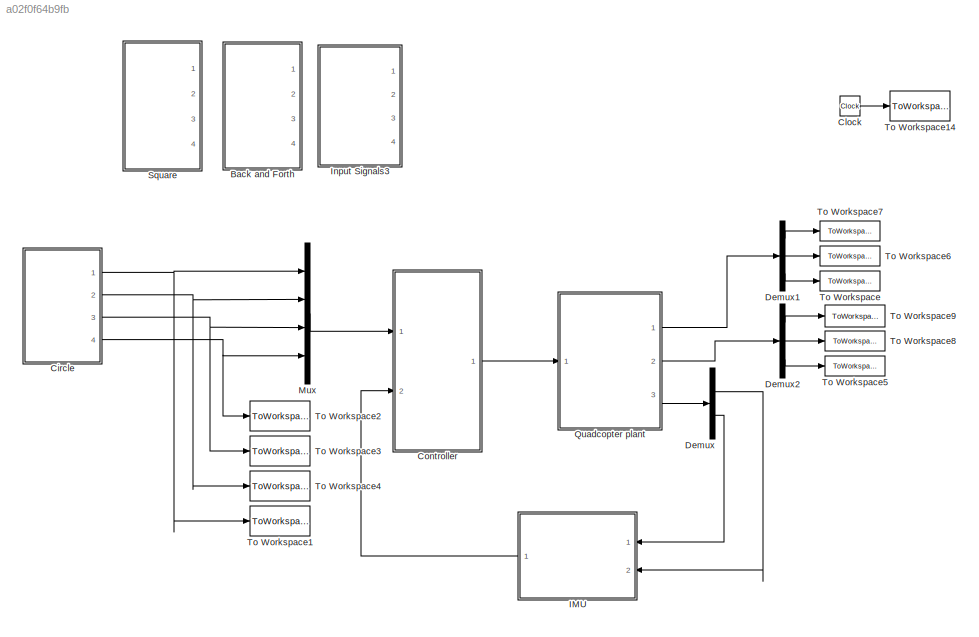
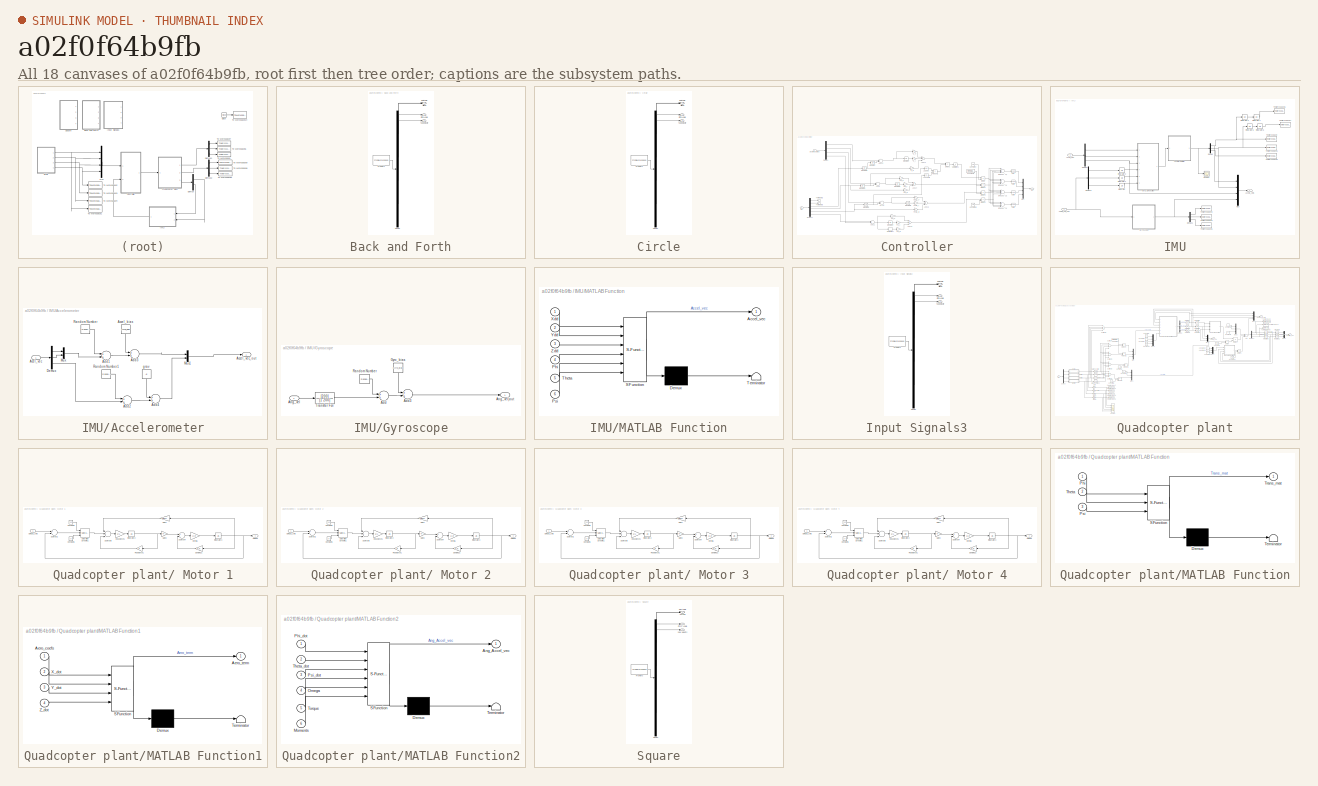
[diagram: thumbnail index - all 18 canvases of the model, root first then tree order]
MODEL slx_a02f0f64b9fb
KIND model
CONFIG AbsTol = auto
CONFIG EnableMultiTasking = off
CONFIG FixedStep = 0.001
CONFIG MaxStep = 1e-4
CONFIG MinStep = 1e-5
CONFIG RelTol = 1e-5
CONFIG SampleTimeConstraint = Unconstrained
CONFIG Solver = VariableStepAuto
CONFIG SolverName = VariableStepAuto
CONFIG StartTime = 0
CONFIG StopTime = 57
BLOCK [SubSystem] Back and Forth
  ClipboardFcn = sigbuilder_block('clipboard');
  CloseFcn = sigbuilder_block('close');
  ContinueFcn = sigbuilder_block('continue');
  CopyFcn = sigbuilder_block('copy');
  DeleteFcn = sigbuilder_block('delete');
  LoadFcn = sigbuilder_block('load');
  MaskHideContents = on
  ModelCloseFcn = sigbuilder_block('modelClose');
  NameChangeFcn = sigbuilder_block('namechange');
  OpenFcn = sigbuilder_block('open',[6 30 1428 682.5 ]);
  PauseFcn = sigbuilder_block('pause');
  Ports = [0, 4]
  PreSaveFcn = sigbuilder_block('preSave');
  RequestExecContextInheritance = off
  StartFcn = sigbuilder_block('start');
  StopFcn = sigbuilder_block('stop');
  Tag = STV Subsys
  Variant = off
BLOCK [Outport] Back and Forth/Altitude
  IconDisplay = Port number
  Tag = STV Outport
BLOCK [Demux] Back and Forth/Demux
  Ports = [1, 4]
  Tag = STV Demux
BLOCK [FromWorkspace] Back and Forth/FromWs
  SampleTime = 0
  Tag = STV FromWs
  VariableName = tuvar
  ZeroCross = on
BLOCK [Outport] Back and Forth/Pitch Angle
  IconDisplay = Port number
  Port = 3
  Tag = STV Outport
BLOCK [Outport] Back and Forth/Roll Angle
  IconDisplay = Port number
  Port = 2
  Tag = STV Outport
BLOCK [Outport] Back and Forth/Yaw Velocity
  IconDisplay = Port number
  Port = 4
  Tag = STV Outport
BLOCK [SubSystem] Circle
  ClipboardFcn = sigbuilder_block('clipboard');
  CloseFcn = sigbuilder_block('close');
  ContinueFcn = sigbuilder_block('continue');
  CopyFcn = sigbuilder_block('copy');
  DeleteFcn = sigbuilder_block('delete');
  LoadFcn = sigbuilder_block('load');
  MaskHideContents = on
  ModelCloseFcn = sigbuilder_block('modelClose');
  NameChangeFcn = sigbuilder_block('namechange');
  OpenFcn = sigbuilder_block('open',[173.25 183.75 1012.5 456 ]);
  PauseFcn = sigbuilder_block('pause');
  Ports = [0, 4]
  PreSaveFcn = sigbuilder_block('preSave');
  RequestExecContextInheritance = off
  StartFcn = sigbuilder_block('start');
  StopFcn = sigbuilder_block('stop');
  Tag = STV Subsys
  Variant = off
BLOCK [Outport] Circle/Altitude
  IconDisplay = Port number
  Tag = STV Outport
BLOCK [Demux] Circle/Demux
  Ports = [1, 4]
  Tag = STV Demux
BLOCK [FromWorkspace] Circle/FromWs
  SampleTime = 0
  Tag = STV FromWs
  VariableName = tuvar
  ZeroCross = on
BLOCK [Outport] Circle/Pitch Angle
  IconDisplay = Port number
  Port = 3
  Tag = STV Outport
BLOCK [Outport] Circle/Roll Angle
  IconDisplay = Port number
  Port = 2
  Tag = STV Outport
BLOCK [Outport] Circle/Yaw Velocity
  IconDisplay = Port number
  Port = 4
  Tag = STV Outport
BLOCK [Clock] Clock
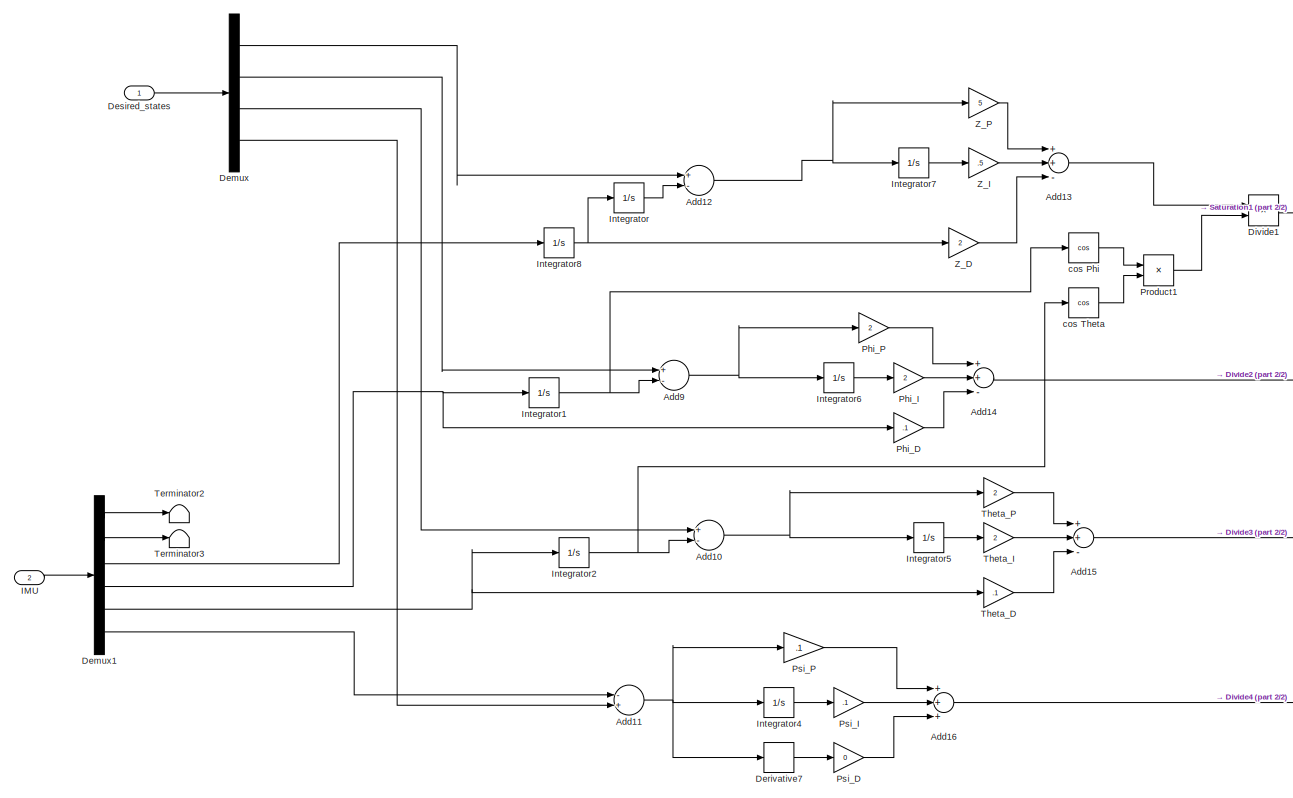
[diagram: Controller - part 1/2, left side, full height]
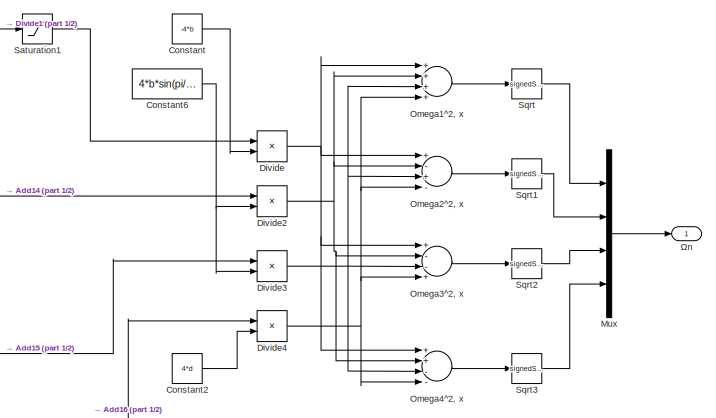
[diagram: Controller - part 2/2, middle right region]
BLOCK [SubSystem] Controller
  Ports = [2, 1]
  RequestExecContextInheritance = off
  Variant = off
BLOCK [Sum] Controller/Add10
  InputSameDT = off
  Inputs = +-
  OutDataTypeStr = Inherit: Inherit via internal rule
  Ports = [2, 1]
  SaturateOnIntegerOverflow = off
BLOCK [Sum] Controller/Add11
  InputSameDT = off
  Inputs = -+
  OutDataTypeStr = Inherit: Inherit via internal rule
  Ports = [2, 1]
  SaturateOnIntegerOverflow = off
BLOCK [Sum] Controller/Add12
  InputSameDT = off
  Inputs = +-
  OutDataTypeStr = Inherit: Inherit via internal rule
  Ports = [2, 1]
  SaturateOnIntegerOverflow = off
BLOCK [Sum] Controller/Add13
  InputSameDT = off
  Inputs = ++-
  OutDataTypeStr = Inherit: Inherit via internal rule
  Ports = [3, 1]
  SaturateOnIntegerOverflow = off
BLOCK [Sum] Controller/Add14
  InputSameDT = off
  Inputs = ++-
  OutDataTypeStr = Inherit: Inherit via internal rule
  Ports = [3, 1]
  SaturateOnIntegerOverflow = off
BLOCK [Sum] Controller/Add15
  InputSameDT = off
  Inputs = ++-
  OutDataTypeStr = Inherit: Inherit via internal rule
  Ports = [3, 1]
  SaturateOnIntegerOverflow = off
BLOCK [Sum] Controller/Add16
  InputSameDT = off
  Inputs = +++
  OutDataTypeStr = Inherit: Inherit via internal rule
  Ports = [3, 1]
  SaturateOnIntegerOverflow = off
BLOCK [Sum] Controller/Add9
  InputSameDT = off
  Inputs = +-
  OutDataTypeStr = Inherit: Inherit via internal rule
  Ports = [2, 1]
  SaturateOnIntegerOverflow = off
BLOCK [Constant] Controller/Constant
  Value = -4*b
BLOCK [Constant] Controller/Constant2
  Value = 4*d
BLOCK [Constant] Controller/Constant6
  Value = 4*b*sin(pi/4)*l
BLOCK [Demux] Controller/Demux
  DisplayOption = bar
  Ports = [1, 4]
BLOCK [Demux] Controller/Demux1
  DisplayOption = bar
  Outputs = 6
  Ports = [1, 6]
BLOCK [Derivative] Controller/Derivative7
BLOCK [Inport] Controller/Desired_states
  IconDisplay = Port number
BLOCK [Product] Controller/Divide
  InputSameDT = off
  Inputs = */
  OutDataTypeStr = Inherit: Inherit via internal rule
  Ports = [2, 1]
  RndMeth = Floor
  SaturateOnIntegerOverflow = off
BLOCK [Product] Controller/Divide1
  InputSameDT = off
  Inputs = */
  OutDataTypeStr = Inherit: Inherit via internal rule
  Ports = [2, 1]
  RndMeth = Floor
  SaturateOnIntegerOverflow = off
BLOCK [Product] Controller/Divide2
  InputSameDT = off
  Inputs = */
  OutDataTypeStr = Inherit: Inherit via internal rule
  Ports = [2, 1]
  RndMeth = Floor
  SaturateOnIntegerOverflow = off
BLOCK [Product] Controller/Divide3
  InputSameDT = off
  Inputs = */
  OutDataTypeStr = Inherit: Inherit via internal rule
  Ports = [2, 1]
  RndMeth = Floor
  SaturateOnIntegerOverflow = off
BLOCK [Product] Controller/Divide4
  InputSameDT = off
  Inputs = */
  OutDataTypeStr = Inherit: Inherit via internal rule
  Ports = [2, 1]
  RndMeth = Floor
  SaturateOnIntegerOverflow = off
BLOCK [Inport] Controller/IMU 
  IconDisplay = Port number
  Port = 2
BLOCK [Integrator] Controller/Integrator
  LimitOutput = on
  Ports = [1, 1]
  UpperSaturationLimit = 0
BLOCK [Integrator] Controller/Integrator1
  Ports = [1, 1]
  WrapState = on
BLOCK [Integrator] Controller/Integrator2
  Ports = [1, 1]
  WrapState = on
BLOCK [Integrator] Controller/Integrator4
  Ports = [1, 1]
BLOCK [Integrator] Controller/Integrator5
  Ports = [1, 1]
BLOCK [Integrator] Controller/Integrator6
  Ports = [1, 1]
BLOCK [Integrator] Controller/Integrator7
  Ports = [1, 1]
BLOCK [Integrator] Controller/Integrator8
  Ports = [1, 1]
BLOCK [Mux] Controller/Mux
  DisplayOption = bar
  Ports = [4, 1]
BLOCK [Sum] Controller/Omega1^2, x
  InputSameDT = off
  Inputs = ++++
  OutDataTypeStr = Inherit: Inherit via internal rule
  Ports = [4, 1]
  SaturateOnIntegerOverflow = off
BLOCK [Sum] Controller/Omega2^2, x
  InputSameDT = off
  Inputs = +-+-
  OutDataTypeStr = Inherit: Inherit via internal rule
  Ports = [4, 1]
  SaturateOnIntegerOverflow = off
BLOCK [Sum] Controller/Omega3^2, x
  InputSameDT = off
  Inputs = +--+
  OutDataTypeStr = Inherit: Inherit via internal rule
  Ports = [4, 1]
  SaturateOnIntegerOverflow = off
BLOCK [Sum] Controller/Omega4^2, x
  InputSameDT = off
  Inputs = ++--
  OutDataTypeStr = Inherit: Inherit via internal rule
  Ports = [4, 1]
  SaturateOnIntegerOverflow = off
BLOCK [Gain] Controller/Phi_D
  Gain = .1
  OutDataTypeStr = Inherit: Inherit via internal rule
  ParamDataTypeStr = Inherit: Inherit via internal rule
  SaturateOnIntegerOverflow = off
BLOCK [Gain] Controller/Phi_I
  Gain = 2
  OutDataTypeStr = Inherit: Inherit via internal rule
  ParamDataTypeStr = Inherit: Inherit via internal rule
  SaturateOnIntegerOverflow = off
BLOCK [Gain] Controller/Phi_P
  Gain = 2
  OutDataTypeStr = Inherit: Inherit via internal rule
  ParamDataTypeStr = Inherit: Inherit via internal rule
  SaturateOnIntegerOverflow = off
BLOCK [Product] Controller/Product1
  InputSameDT = off
  OutDataTypeStr = Inherit: Inherit via internal rule
  Ports = [2, 1]
  SaturateOnIntegerOverflow = off
BLOCK [Gain] Controller/Psi_D
  Gain = 0
  OutDataTypeStr = Inherit: Inherit via internal rule
  ParamDataTypeStr = Inherit: Inherit via internal rule
  SaturateOnIntegerOverflow = off
BLOCK [Gain] Controller/Psi_I
  Gain = .1
  OutDataTypeStr = Inherit: Inherit via internal rule
  ParamDataTypeStr = Inherit: Inherit via internal rule
  SaturateOnIntegerOverflow = off
BLOCK [Gain] Controller/Psi_P
  Gain = .1
  OutDataTypeStr = Inherit: Inherit via internal rule
  ParamDataTypeStr = Inherit: Inherit via internal rule
  SaturateOnIntegerOverflow = off
BLOCK [Saturate] Controller/Saturation1
  InputPortMap = u0
  LowerLimit = -inf
  Ports = [1, 1]
  UpperLimit = 0
BLOCK [Sqrt] Controller/Sqrt
  Operator = signedSqrt
BLOCK [Sqrt] Controller/Sqrt1
  Operator = signedSqrt
BLOCK [Sqrt] Controller/Sqrt2
  Operator = signedSqrt
BLOCK [Sqrt] Controller/Sqrt3
  Operator = signedSqrt
BLOCK [Terminator] Controller/Terminator2
BLOCK [Terminator] Controller/Terminator3
BLOCK [Gain] Controller/Theta_D
  Gain = .1
  OutDataTypeStr = Inherit: Inherit via internal rule
  ParamDataTypeStr = Inherit: Inherit via internal rule
  SaturateOnIntegerOverflow = off
BLOCK [Gain] Controller/Theta_I
  Gain = 2
  OutDataTypeStr = Inherit: Inherit via internal rule
  ParamDataTypeStr = Inherit: Inherit via internal rule
  SaturateOnIntegerOverflow = off
BLOCK [Gain] Controller/Theta_P
  Gain = 2
  OutDataTypeStr = Inherit: Inherit via internal rule
  ParamDataTypeStr = Inherit: Inherit via internal rule
  SaturateOnIntegerOverflow = off
BLOCK [Gain] Controller/Z_D
  Gain = 2
  OutDataTypeStr = Inherit: Inherit via internal rule
  ParamDataTypeStr = Inherit: Inherit via internal rule
  SaturateOnIntegerOverflow = off
BLOCK [Gain] Controller/Z_I 
  Gain = .5
  OutDataTypeStr = Inherit: Inherit via internal rule
  ParamDataTypeStr = Inherit: Inherit via internal rule
  SaturateOnIntegerOverflow = off
BLOCK [Gain] Controller/Z_P
  Gain = 5
  OutDataTypeStr = Inherit: Inherit via internal rule
  ParamDataTypeStr = Inherit: Inherit via internal rule
  SaturateOnIntegerOverflow = off
BLOCK [Trigonometry] Controller/cos Phi
  Operator = cos
  Ports = [1, 1]
BLOCK [Trigonometry] Controller/cos Theta
  Operator = cos
  Ports = [1, 1]
BLOCK [Outport] Controller/Ωn
  IconDisplay = Port number
BLOCK [Demux] Demux
  DisplayOption = bar
  Outputs = 2
  Ports = [1, 2]
BLOCK [Demux] Demux1
  DisplayOption = bar
  Outputs = 3
  Ports = [1, 3]
BLOCK [Demux] Demux2
  DisplayOption = bar
  Outputs = 3
  Ports = [1, 3]
BLOCK [SubSystem] IMU
  Ports = [2, 1]
  RequestExecContextInheritance = off
  Variant = off
BLOCK [Inport] IMU/Accel_vec
  IconDisplay = Port number
BLOCK [SubSystem] IMU/Accelerometer
  Ports = [1, 1]
  RequestExecContextInheritance = off
  Variant = off
BLOCK [Constant] IMU/Accelerometer/Accel_bias
  Value = Accel_bias
BLOCK [Outport] IMU/Accelerometer/Accel_vec_out
  IconDisplay = Port number
BLOCK [Inport] IMU/Accelerometer/Acel_vec
  IconDisplay = Port number
BLOCK [Sum] IMU/Accelerometer/Add1
  InputSameDT = off
  OutDataTypeStr = Inherit: Inherit via internal rule
  Ports = [2, 1]
  SaturateOnIntegerOverflow = off
BLOCK [Sum] IMU/Accelerometer/Add2
  InputSameDT = off
  OutDataTypeStr = Inherit: Inherit via internal rule
  Ports = [2, 1]
  SaturateOnIntegerOverflow = off
BLOCK [Sum] IMU/Accelerometer/Add3
  InputSameDT = off
  OutDataTypeStr = Inherit: Inherit via internal rule
  Ports = [2, 1]
  SaturateOnIntegerOverflow = off
BLOCK [Sum] IMU/Accelerometer/Add4
  InputSameDT = off
  OutDataTypeStr = Inherit: Inherit via internal rule
  Ports = [2, 1]
  SaturateOnIntegerOverflow = off
BLOCK [Demux] IMU/Accelerometer/Demux
  DisplayOption = bar
  Outputs = 3
  Ports = [1, 3]
BLOCK [Mux] IMU/Accelerometer/Mux
  DisplayOption = bar
  Inputs = 2
  Ports = [2, 1]
BLOCK [Mux] IMU/Accelerometer/Mux1
  DisplayOption = bar
  Inputs = 2
  Ports = [2, 1]
BLOCK [RandomNumber] IMU/Accelerometer/Random Number
  Commented = on
  SampleTime = 0.001
  Seed = 4
  Variance = 0.0001
BLOCK [RandomNumber] IMU/Accelerometer/Random Number1
  Commented = on
  SampleTime = 0.001
  Seed = 4
  Variance = 0.0001
BLOCK [Constant] IMU/Accelerometer/grav
  Value = -g
BLOCK [Outport] IMU/Accels_Vels
  IconDisplay = Port number
BLOCK [Inport] IMU/Angel_vel_vec
  IconDisplay = Port number
  Port = 2
BLOCK [Demux] IMU/Demux
  DisplayOption = bar
  Outputs = 3
  Ports = [1, 3]
BLOCK [Demux] IMU/Demux1
  DisplayOption = bar
  Outputs = 3
  Ports = [1, 3]
BLOCK [Demux] IMU/Demux2
  DisplayOption = bar
  Outputs = 3
  Ports = [1, 3]
BLOCK [Demux] IMU/Demux3
  DisplayOption = bar
  Outputs = 3
  Ports = [1, 3]
BLOCK [SubSystem] IMU/Gyroscope
  Ports = [1, 1]
  RequestExecContextInheritance = off
  Variant = off
BLOCK [Sum] IMU/Gyroscope/Add
  InputSameDT = off
  OutDataTypeStr = Inherit: Inherit via internal rule
  Ports = [2, 1]
  SaturateOnIntegerOverflow = off
BLOCK [Sum] IMU/Gyroscope/Add3
  InputSameDT = off
  OutDataTypeStr = Inherit: Inherit via internal rule
  Ports = [2, 1]
  SaturateOnIntegerOverflow = off
BLOCK [Inport] IMU/Gyroscope/Ang_vel
  IconDisplay = Port number
BLOCK [Outport] IMU/Gyroscope/Ang_vel)out
  IconDisplay = Port number
BLOCK [Constant] IMU/Gyroscope/Gyro_bias
  Value = Gyro_bias
BLOCK [RandomNumber] IMU/Gyroscope/Random Number
  Commented = on
  SampleTime = 0.001
  Seed = 4
  Variance = 0.0001
BLOCK [TransferFcn] IMU/Gyroscope/Transfer Fcn
  Commented = through
  Denominator = [1 200]
  Numerator = [200]
BLOCK [Integrator] IMU/Integrator
  Ports = [1, 1]
BLOCK [Integrator] IMU/Integrator1
  Ports = [1, 1]
  WrapState = on
BLOCK [Integrator] IMU/Integrator2
  Ports = [1, 1]
  WrapState = on
BLOCK [Integrator] IMU/Integrator3
  Ports = [1, 1]
BLOCK [Integrator] IMU/Integrator4
  Ports = [1, 1]
BLOCK [Integrator] IMU/Integrator5
  Ports = [1, 1]
BLOCK [Integrator] IMU/Integrator6
  Ports = [1, 1]
BLOCK [SubSystem] IMU/MATLAB Function
  ErrorFcn = Stateflow.Translate.translate
  PermitHierarchicalResolution = ExplicitOnly
  Ports = [6, 1]
  RequestExecContextInheritance = off
  SFBlockType = MATLAB Function
  TreatAsAtomicUnit = on
  Variant = off
BLOCK [Demux] IMU/MATLAB Function/ Demux 
  Outputs = 1
  Ports = [1, 1]
BLOCK [S-Function] IMU/MATLAB Function/ SFunction 
  EnableBusSupport = on
  FunctionName = sf_sfun
  PortCounts = [6 2]
  Ports = [6, 2]
  SFcnIsStateOwnerBlock = off
  SFunctionDeploymentMode = off
  Tag = Stateflow S-Function Controlled_simulink_model_vectorized 2
BLOCK [Terminator] IMU/MATLAB Function/ Terminator 
BLOCK [Outport] IMU/MATLAB Function/Accel_vec
  IconDisplay = Port number
BLOCK [Inport] IMU/MATLAB Function/Phi
  IconDisplay = Port number
  Port = 4
BLOCK [Inport] IMU/MATLAB Function/Psi
  IconDisplay = Port number
  Port = 6
BLOCK [Inport] IMU/MATLAB Function/Theta
  IconDisplay = Port number
  Port = 5
BLOCK [Inport] IMU/MATLAB Function/Xdd
  IconDisplay = Port number
BLOCK [Inport] IMU/MATLAB Function/Ydd
  IconDisplay = Port number
  Port = 2
BLOCK [Inport] IMU/MATLAB Function/Zdd
  IconDisplay = Port number
  Port = 3
BLOCK [Mux] IMU/Mux
  DisplayOption = bar
  Ports = [4, 1]
BLOCK [Scope] IMU/Scope1
  NumInputPorts = 1
  Ports = [1]
  ScopeSpecificationString = Simulink.scopes.TimeScopeBlockCfg('CurrentConfiguration', extmgr.ConfigurationSet(extmgr.Configuration('Core','General UI',true),extmgr.Configuration('Core','Source UI',true),extmgr.Configuration('Sources','WiredSimulink',true,'DataLoggingVariableName','ScopeData6'),extmgr.Configuration('Visuals','Time Domain',true,'SerializedDisplays',{struct('MinYLimReal','-36.33786','MaxYLimReal','32.80773','YL...<+1465ch>
BLOCK [ToWorkspace] IMU/To Workspace
  FixptAsFi = on
  MaxDataPoints = inf
  Ports = [1]
  SampleTime = 0.001
  Save2DSignal = 2-D array (concatenate along first dimension)
  VariableName = X_dot_dot
BLOCK [ToWorkspace] IMU/To Workspace1
  FixptAsFi = on
  MaxDataPoints = inf
  Ports = [1]
  SampleTime = 0.001
  Save2DSignal = 2-D array (concatenate along first dimension)
  VariableName = Y_dot_dot
BLOCK [ToWorkspace] IMU/To Workspace2
  FixptAsFi = on
  MaxDataPoints = inf
  Ports = [1]
  SampleTime = 0.001
  Save2DSignal = 2-D array (concatenate along first dimension)
  VariableName = Z_dot_dot
BLOCK [ToWorkspace] IMU/To Workspace3
  FixptAsFi = on
  MaxDataPoints = inf
  Ports = [1]
  SampleTime = 0.001
  Save2DSignal = 2-D array (concatenate along first dimension)
  VariableName = Phi_dot
BLOCK [ToWorkspace] IMU/To Workspace4
  FixptAsFi = on
  MaxDataPoints = inf
  Ports = [1]
  SampleTime = 0.001
  Save2DSignal = 2-D array (concatenate along first dimension)
  VariableName = Theta_dot
BLOCK [ToWorkspace] IMU/To Workspace5
  FixptAsFi = on
  MaxDataPoints = inf
  Ports = [1]
  SampleTime = 0.001
  Save2DSignal = 2-D array (concatenate along first dimension)
  VariableName = Psi_dot
BLOCK [ToWorkspace] IMU/To Workspace6
  FixptAsFi = on
  MaxDataPoints = inf
  Ports = [1]
  SampleTime = 0.001
  Save2DSignal = 2-D array (concatenate along first dimension)
  VariableName = Sensor_x_pos
BLOCK [ToWorkspace] IMU/To Workspace7
  FixptAsFi = on
  MaxDataPoints = inf
  Ports = [1]
  SampleTime = 0.001
  Save2DSignal = 2-D array (concatenate along first dimension)
  VariableName = Sensor_y_pos
BLOCK [SubSystem] Input Signals3
  ClipboardFcn = sigbuilder_block('clipboard');
  CloseFcn = sigbuilder_block('close');
  ContinueFcn = sigbuilder_block('continue');
  CopyFcn = sigbuilder_block('copy');
  DeleteFcn = sigbuilder_block('delete');
  LoadFcn = sigbuilder_block('load');
  MaskHideContents = on
  ModelCloseFcn = sigbuilder_block('modelClose');
  NameChangeFcn = sigbuilder_block('namechange');
  OpenFcn = sigbuilder_block('open',[6 46.5 1428 642 ]);
  PauseFcn = sigbuilder_block('pause');
  Ports = [0, 4]
  PreSaveFcn = sigbuilder_block('preSave');
  RequestExecContextInheritance = off
  StartFcn = sigbuilder_block('start');
  StopFcn = sigbuilder_block('stop');
  Tag = STV Subsys
  Variant = off
BLOCK [Outport] Input Signals3/Altitude
  IconDisplay = Port number
  Tag = STV Outport
BLOCK [Demux] Input Signals3/Demux
  Ports = [1, 4]
  Tag = STV Demux
BLOCK [FromWorkspace] Input Signals3/FromWs
  SampleTime = 0
  Tag = STV FromWs
  VariableName = tuvar
  ZeroCross = on
BLOCK [Outport] Input Signals3/Pitch Angle
  IconDisplay = Port number
  Port = 3
  Tag = STV Outport
BLOCK [Outport] Input Signals3/Roll Angle
  IconDisplay = Port number
  Port = 2
  Tag = STV Outport
BLOCK [Outport] Input Signals3/Yaw Velocity
  IconDisplay = Port number
  Port = 4
  Tag = STV Outport
BLOCK [Mux] Mux
  DisplayOption = bar
  Ports = [4, 1]
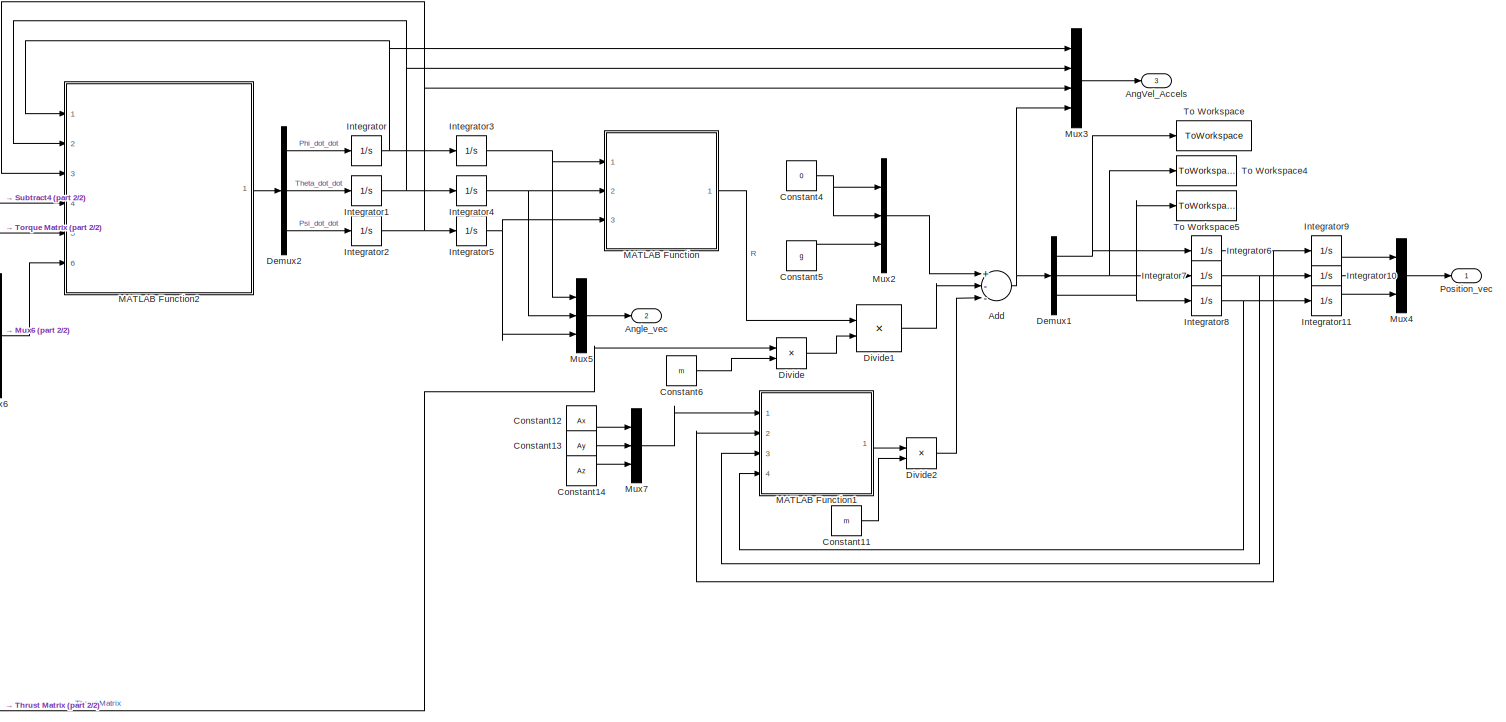
[diagram: Quadcopter plant - part 1/2, middle right region]
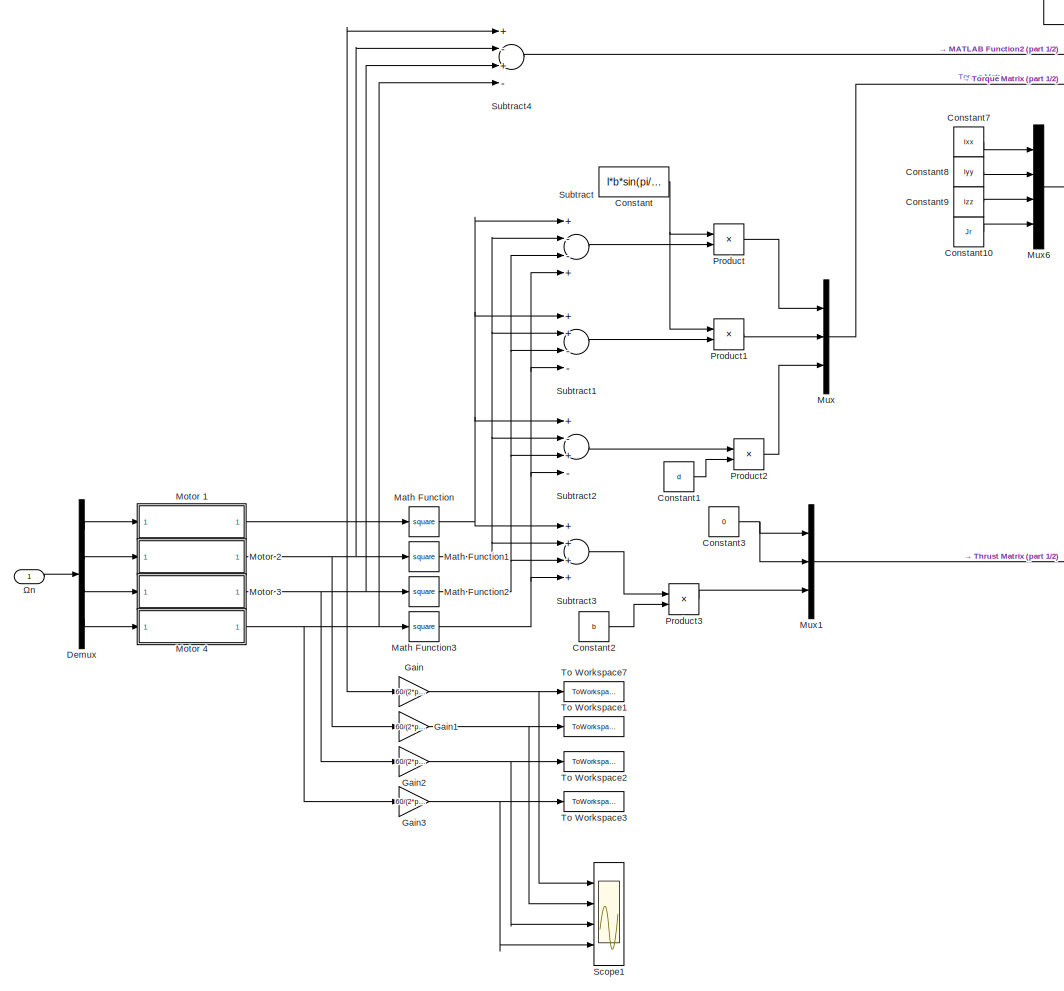
[diagram: Quadcopter plant - part 2/2, left side, full height]
BLOCK [SubSystem] Quadcopter plant
  Ports = [1, 3]
  RequestExecContextInheritance = off
  Variant = off
BLOCK [SubSystem] Quadcopter plant/ Motor 1
  Ports = [1, 1]
  RequestExecContextInheritance = off
  Variant = off
BLOCK [Constant] Quadcopter plant/ Motor 1/Constant1
  Value = 0
BLOCK [Constant] Quadcopter plant/ Motor 1/Constant2
  Value = 12
BLOCK [Gain] Quadcopter plant/ Motor 1/Damping1
  Gain = b_m
  OutDataTypeStr = Inherit: Inherit via internal rule
  ParamDataTypeStr = Inherit: Inherit via internal rule
  SaturateOnIntegerOverflow = off
BLOCK [Gain] Quadcopter plant/ Motor 1/Gain3
  Gain = Kt
  OutDataTypeStr = Inherit: Inherit via internal rule
  ParamDataTypeStr = Inherit: Inherit via internal rule
  SaturateOnIntegerOverflow = off
BLOCK [Gain] Quadcopter plant/ Motor 1/Gain4
  Gain = Kemf
  OutDataTypeStr = Inherit: Inherit via internal rule
  ParamDataTypeStr = Inherit: Inherit via internal rule
  SaturateOnIntegerOverflow = off
BLOCK [Gain] Quadcopter plant/ Motor 1/Inductance1
  Gain = 1/L
  OutDataTypeStr = Inherit: Inherit via internal rule
  ParamDataTypeStr = Inherit: Inherit via internal rule
  SaturateOnIntegerOverflow = off
BLOCK [Gain] Quadcopter plant/ Motor 1/Inertia1
  Gain = 1/Jr
  OutDataTypeStr = Inherit: Inherit via internal rule
  ParamDataTypeStr = Inherit: Inherit via internal rule
  SaturateOnIntegerOverflow = off
BLOCK [Integrator] Quadcopter plant/ Motor 1/Integrator2
  LimitOutput = on
  LowerSaturationLimit = 0
  Ports = [1, 1]
BLOCK [Integrator] Quadcopter plant/ Motor 1/Integrator3
  LimitOutput = on
  LowerSaturationLimit = 0
  Ports = [1, 1]
BLOCK [Outport] Quadcopter plant/ Motor 1/Omega
  IconDisplay = Port number
BLOCK [Inport] Quadcopter plant/ Motor 1/Omega_cmd
  IconDisplay = Port number
BLOCK [Gain] Quadcopter plant/ Motor 1/Resistance1
  Gain = R
  OutDataTypeStr = Inherit: Inherit via internal rule
  ParamDataTypeStr = Inherit: Inherit via internal rule
  SaturateOnIntegerOverflow = off
BLOCK [Reference] Quadcopter plant/ Motor 1/Saturation Dynamic1  REF=simulink/Discontinuities/Saturation
Dynamic
  Ports = [3, 1]
  SourceBlock = simulink/Discontinuities/Saturation\nDynamic
  SourceProductBaseCode = SL
  SourceProductName = Simulink
  SourceType = Saturation Dynamic
BLOCK [Sum] Quadcopter plant/ Motor 1/Subtract1
  InputSameDT = off
  Inputs = +-
  OutDataTypeStr = Inherit: Inherit via internal rule
  Ports = [2, 1]
  SaturateOnIntegerOverflow = off
BLOCK [Sum] Quadcopter plant/ Motor 1/Subtract4
  InputSameDT = off
  Inputs = +-
  OutDataTypeStr = Inherit: Inherit via internal rule
  Ports = [2, 1]
  SaturateOnIntegerOverflow = off
BLOCK [Sum] Quadcopter plant/ Motor 1/Subtract5
  InputSameDT = off
  Inputs = -+-
  OutDataTypeStr = Inherit: Inherit via internal rule
  Ports = [3, 1]
  SaturateOnIntegerOverflow = off
BLOCK [SubSystem] Quadcopter plant/ Motor 2
  Ports = [1, 1]
  RequestExecContextInheritance = off
  Variant = off
BLOCK [Constant] Quadcopter plant/ Motor 2/Constant1
  Value = 0
BLOCK [Constant] Quadcopter plant/ Motor 2/Constant2
  Value = 12
BLOCK [Gain] Quadcopter plant/ Motor 2/Damping1
  Gain = b_m
  OutDataTypeStr = Inherit: Inherit via internal rule
  ParamDataTypeStr = Inherit: Inherit via internal rule
  SaturateOnIntegerOverflow = off
BLOCK [Gain] Quadcopter plant/ Motor 2/Gain3
  Gain = Kt
  OutDataTypeStr = Inherit: Inherit via internal rule
  ParamDataTypeStr = Inherit: Inherit via internal rule
  SaturateOnIntegerOverflow = off
BLOCK [Gain] Quadcopter plant/ Motor 2/Gain4
  Gain = Kemf
  OutDataTypeStr = Inherit: Inherit via internal rule
  ParamDataTypeStr = Inherit: Inherit via internal rule
  SaturateOnIntegerOverflow = off
BLOCK [Gain] Quadcopter plant/ Motor 2/Inductance1
  Gain = 1/L
  OutDataTypeStr = Inherit: Inherit via internal rule
  ParamDataTypeStr = Inherit: Inherit via internal rule
  SaturateOnIntegerOverflow = off
BLOCK [Gain] Quadcopter plant/ Motor 2/Inertia1
  Gain = 1/Jr
  OutDataTypeStr = Inherit: Inherit via internal rule
  ParamDataTypeStr = Inherit: Inherit via internal rule
  SaturateOnIntegerOverflow = off
BLOCK [Integrator] Quadcopter plant/ Motor 2/Integrator2
  LimitOutput = on
  LowerSaturationLimit = 0
  Ports = [1, 1]
BLOCK [Integrator] Quadcopter plant/ Motor 2/Integrator3
  LimitOutput = on
  LowerSaturationLimit = 0
  Ports = [1, 1]
BLOCK [Outport] Quadcopter plant/ Motor 2/Omega
  IconDisplay = Port number
BLOCK [Inport] Quadcopter plant/ Motor 2/Omega_cmd
  IconDisplay = Port number
BLOCK [Gain] Quadcopter plant/ Motor 2/Resistance1
  Gain = R
  OutDataTypeStr = Inherit: Inherit via internal rule
  ParamDataTypeStr = Inherit: Inherit via internal rule
  SaturateOnIntegerOverflow = off
BLOCK [Reference] Quadcopter plant/ Motor 2/Saturation Dynamic1  REF=simulink/Discontinuities/Saturation
Dynamic
  Ports = [3, 1]
  SourceBlock = simulink/Discontinuities/Saturation\nDynamic
  SourceProductBaseCode = SL
  SourceProductName = Simulink
  SourceType = Saturation Dynamic
BLOCK [Sum] Quadcopter plant/ Motor 2/Subtract1
  InputSameDT = off
  Inputs = +-
  OutDataTypeStr = Inherit: Inherit via internal rule
  Ports = [2, 1]
  SaturateOnIntegerOverflow = off
BLOCK [Sum] Quadcopter plant/ Motor 2/Subtract4
  InputSameDT = off
  Inputs = +-
  OutDataTypeStr = Inherit: Inherit via internal rule
  Ports = [2, 1]
  SaturateOnIntegerOverflow = off
BLOCK [Sum] Quadcopter plant/ Motor 2/Subtract5
  InputSameDT = off
  Inputs = -+-
  OutDataTypeStr = Inherit: Inherit via internal rule
  Ports = [3, 1]
  SaturateOnIntegerOverflow = off
BLOCK [SubSystem] Quadcopter plant/ Motor 3
  Ports = [1, 1]
  RequestExecContextInheritance = off
  Variant = off
BLOCK [Constant] Quadcopter plant/ Motor 3/Constant1
  Value = 0
BLOCK [Constant] Quadcopter plant/ Motor 3/Constant2
  Value = 12
BLOCK [Gain] Quadcopter plant/ Motor 3/Damping1
  Gain = b_m
  OutDataTypeStr = Inherit: Inherit via internal rule
  ParamDataTypeStr = Inherit: Inherit via internal rule
  SaturateOnIntegerOverflow = off
BLOCK [Gain] Quadcopter plant/ Motor 3/Gain3
  Gain = Kt
  OutDataTypeStr = Inherit: Inherit via internal rule
  ParamDataTypeStr = Inherit: Inherit via internal rule
  SaturateOnIntegerOverflow = off
BLOCK [Gain] Quadcopter plant/ Motor 3/Gain4
  Gain = Kemf
  OutDataTypeStr = Inherit: Inherit via internal rule
  ParamDataTypeStr = Inherit: Inherit via internal rule
  SaturateOnIntegerOverflow = off
BLOCK [Gain] Quadcopter plant/ Motor 3/Inductance1
  Gain = 1/L
  OutDataTypeStr = Inherit: Inherit via internal rule
  ParamDataTypeStr = Inherit: Inherit via internal rule
  SaturateOnIntegerOverflow = off
BLOCK [Gain] Quadcopter plant/ Motor 3/Inertia1
  Gain = 1/Jr
  OutDataTypeStr = Inherit: Inherit via internal rule
  ParamDataTypeStr = Inherit: Inherit via internal rule
  SaturateOnIntegerOverflow = off
BLOCK [Integrator] Quadcopter plant/ Motor 3/Integrator2
  LimitOutput = on
  LowerSaturationLimit = 0
  Ports = [1, 1]
BLOCK [Integrator] Quadcopter plant/ Motor 3/Integrator3
  LimitOutput = on
  LowerSaturationLimit = 0
  Ports = [1, 1]
BLOCK [Outport] Quadcopter plant/ Motor 3/Omega
  IconDisplay = Port number
BLOCK [Inport] Quadcopter plant/ Motor 3/Omega_cmd
  IconDisplay = Port number
BLOCK [Gain] Quadcopter plant/ Motor 3/Resistance1
  Gain = R
  OutDataTypeStr = Inherit: Inherit via internal rule
  ParamDataTypeStr = Inherit: Inherit via internal rule
  SaturateOnIntegerOverflow = off
BLOCK [Reference] Quadcopter plant/ Motor 3/Saturation Dynamic1  REF=simulink/Discontinuities/Saturation
Dynamic
  Ports = [3, 1]
  SourceBlock = simulink/Discontinuities/Saturation\nDynamic
  SourceProductBaseCode = SL
  SourceProductName = Simulink
  SourceType = Saturation Dynamic
BLOCK [Sum] Quadcopter plant/ Motor 3/Subtract1
  InputSameDT = off
  Inputs = +-
  OutDataTypeStr = Inherit: Inherit via internal rule
  Ports = [2, 1]
  SaturateOnIntegerOverflow = off
BLOCK [Sum] Quadcopter plant/ Motor 3/Subtract4
  InputSameDT = off
  Inputs = +-
  OutDataTypeStr = Inherit: Inherit via internal rule
  Ports = [2, 1]
  SaturateOnIntegerOverflow = off
BLOCK [Sum] Quadcopter plant/ Motor 3/Subtract5
  InputSameDT = off
  Inputs = -+-
  OutDataTypeStr = Inherit: Inherit via internal rule
  Ports = [3, 1]
  SaturateOnIntegerOverflow = off
BLOCK [SubSystem] Quadcopter plant/ Motor 4
  Ports = [1, 1]
  RequestExecContextInheritance = off
  Variant = off
BLOCK [Constant] Quadcopter plant/ Motor 4/Constant1
  Value = 0
BLOCK [Constant] Quadcopter plant/ Motor 4/Constant2
  Value = 12
BLOCK [Gain] Quadcopter plant/ Motor 4/Damping1
  Gain = b_m
  OutDataTypeStr = Inherit: Inherit via internal rule
  ParamDataTypeStr = Inherit: Inherit via internal rule
  SaturateOnIntegerOverflow = off
BLOCK [Gain] Quadcopter plant/ Motor 4/Gain3
  Gain = Kt
  OutDataTypeStr = Inherit: Inherit via internal rule
  ParamDataTypeStr = Inherit: Inherit via internal rule
  SaturateOnIntegerOverflow = off
BLOCK [Gain] Quadcopter plant/ Motor 4/Gain4
  Gain = Kemf
  OutDataTypeStr = Inherit: Inherit via internal rule
  ParamDataTypeStr = Inherit: Inherit via internal rule
  SaturateOnIntegerOverflow = off
BLOCK [Gain] Quadcopter plant/ Motor 4/Inductance1
  Gain = 1/L
  OutDataTypeStr = Inherit: Inherit via internal rule
  ParamDataTypeStr = Inherit: Inherit via internal rule
  SaturateOnIntegerOverflow = off
BLOCK [Gain] Quadcopter plant/ Motor 4/Inertia1
  Gain = 1/Jr
  OutDataTypeStr = Inherit: Inherit via internal rule
  ParamDataTypeStr = Inherit: Inherit via internal rule
  SaturateOnIntegerOverflow = off
BLOCK [Integrator] Quadcopter plant/ Motor 4/Integrator2
  LimitOutput = on
  LowerSaturationLimit = 0
  Ports = [1, 1]
BLOCK [Integrator] Quadcopter plant/ Motor 4/Integrator3
  LimitOutput = on
  LowerSaturationLimit = 0
  Ports = [1, 1]
BLOCK [Outport] Quadcopter plant/ Motor 4/Omega
  IconDisplay = Port number
BLOCK [Inport] Quadcopter plant/ Motor 4/Omega_cmd
  IconDisplay = Port number
BLOCK [Gain] Quadcopter plant/ Motor 4/Resistance1
  Gain = R
  OutDataTypeStr = Inherit: Inherit via internal rule
  ParamDataTypeStr = Inherit: Inherit via internal rule
  SaturateOnIntegerOverflow = off
BLOCK [Reference] Quadcopter plant/ Motor 4/Saturation Dynamic1  REF=simulink/Discontinuities/Saturation
Dynamic
  Ports = [3, 1]
  SourceBlock = simulink/Discontinuities/Saturation\nDynamic
  SourceProductBaseCode = SL
  SourceProductName = Simulink
  SourceType = Saturation Dynamic
BLOCK [Sum] Quadcopter plant/ Motor 4/Subtract1
  InputSameDT = off
  Inputs = +-
  OutDataTypeStr = Inherit: Inherit via internal rule
  Ports = [2, 1]
  SaturateOnIntegerOverflow = off
BLOCK [Sum] Quadcopter plant/ Motor 4/Subtract4
  InputSameDT = off
  Inputs = +-
  OutDataTypeStr = Inherit: Inherit via internal rule
  Ports = [2, 1]
  SaturateOnIntegerOverflow = off
BLOCK [Sum] Quadcopter plant/ Motor 4/Subtract5
  InputSameDT = off
  Inputs = -+-
  OutDataTypeStr = Inherit: Inherit via internal rule
  Ports = [3, 1]
  SaturateOnIntegerOverflow = off
BLOCK [Sum] Quadcopter plant/Add
  InputSameDT = off
  Inputs = +--
  OutDataTypeStr = Inherit: Inherit via internal rule
  Ports = [3, 1]
  SaturateOnIntegerOverflow = off
BLOCK [Outport] Quadcopter plant/AngVel_Accels
  IconDisplay = Port number
  Port = 3
BLOCK [Outport] Quadcopter plant/Angle_vec
  IconDisplay = Port number
  Port = 2
BLOCK [Constant] Quadcopter plant/Constant
  Value = l*b*sin(pi/4)
BLOCK [Constant] Quadcopter plant/Constant1
  Value = d
BLOCK [Constant] Quadcopter plant/Constant10
  Value = Jr
BLOCK [Constant] Quadcopter plant/Constant11
  Value = m
BLOCK [Constant] Quadcopter plant/Constant12
  Value = Ax
BLOCK [Constant] Quadcopter plant/Constant13
  Value = Ay
BLOCK [Constant] Quadcopter plant/Constant14
  Value = Az
BLOCK [Constant] Quadcopter plant/Constant2
  Value = b
BLOCK [Constant] Quadcopter plant/Constant3
  Value = 0
BLOCK [Constant] Quadcopter plant/Constant4
  Value = 0
BLOCK [Constant] Quadcopter plant/Constant5
  Value = g
BLOCK [Constant] Quadcopter plant/Constant6
  Value = m
BLOCK [Constant] Quadcopter plant/Constant7
  Value = Ixx
BLOCK [Constant] Quadcopter plant/Constant8
  Value = Iyy
BLOCK [Constant] Quadcopter plant/Constant9
  Value = Izz
BLOCK [Demux] Quadcopter plant/Demux
  DisplayOption = bar
  Ports = [1, 4]
BLOCK [Demux] Quadcopter plant/Demux1
  DisplayOption = bar
  Outputs = 3
  Ports = [1, 3]
BLOCK [Demux] Quadcopter plant/Demux2
  DisplayOption = bar
  Outputs = 3
  Ports = [1, 3]
BLOCK [Product] Quadcopter plant/Divide
  InputSameDT = off
  Inputs = */
  OutDataTypeStr = Inherit: Inherit via internal rule
  Ports = [2, 1]
  RndMeth = Floor
  SaturateOnIntegerOverflow = off
BLOCK [Product] Quadcopter plant/Divide1
  InputSameDT = off
  Inputs = **
  Multiplication = Matrix(*)
  OutDataTypeStr = Inherit: Inherit via internal rule
  Ports = [2, 1]
  RndMeth = Floor
  SaturateOnIntegerOverflow = off
BLOCK [Product] Quadcopter plant/Divide2
  InputSameDT = off
  Inputs = */
  OutDataTypeStr = Inherit: Inherit via internal rule
  Ports = [2, 1]
  RndMeth = Floor
  SaturateOnIntegerOverflow = off
BLOCK [Gain] Quadcopter plant/Gain
  Gain = 60/(2*pi)
  OutDataTypeStr = Inherit: Inherit via internal rule
  ParamDataTypeStr = Inherit: Inherit via internal rule
  SaturateOnIntegerOverflow = off
BLOCK [Gain] Quadcopter plant/Gain1
  Gain = 60/(2*pi)
  OutDataTypeStr = Inherit: Inherit via internal rule
  ParamDataTypeStr = Inherit: Inherit via internal rule
  SaturateOnIntegerOverflow = off
BLOCK [Gain] Quadcopter plant/Gain2
  Gain = 60/(2*pi)
  OutDataTypeStr = Inherit: Inherit via internal rule
  ParamDataTypeStr = Inherit: Inherit via internal rule
  SaturateOnIntegerOverflow = off
BLOCK [Gain] Quadcopter plant/Gain3
  Gain = 60/(2*pi)
  OutDataTypeStr = Inherit: Inherit via internal rule
  ParamDataTypeStr = Inherit: Inherit via internal rule
  SaturateOnIntegerOverflow = off
BLOCK [Integrator] Quadcopter plant/Integrator
  Ports = [1, 1]
BLOCK [Integrator] Quadcopter plant/Integrator1
  Ports = [1, 1]
BLOCK [Integrator] Quadcopter plant/Integrator10
  Ports = [1, 1]
BLOCK [Integrator] Quadcopter plant/Integrator11
  LimitOutput = on
  Ports = [1, 1]
  UpperSaturationLimit = 0
BLOCK [Integrator] Quadcopter plant/Integrator2
  Ports = [1, 1]
BLOCK [Integrator] Quadcopter plant/Integrator3
  Ports = [1, 1]
  WrapState = on
BLOCK [Integrator] Quadcopter plant/Integrator4
  Ports = [1, 1]
  WrapState = on
BLOCK [Integrator] Quadcopter plant/Integrator5
  Ports = [1, 1]
BLOCK [Integrator] Quadcopter plant/Integrator6
  Ports = [1, 1]
BLOCK [Integrator] Quadcopter plant/Integrator7
  Ports = [1, 1]
BLOCK [Integrator] Quadcopter plant/Integrator8
  LowerSaturationLimit = 0
  Ports = [1, 1]
BLOCK [Integrator] Quadcopter plant/Integrator9
  Ports = [1, 1]
BLOCK [SubSystem] Quadcopter plant/MATLAB Function
  ErrorFcn = Stateflow.Translate.translate
  PermitHierarchicalResolution = ExplicitOnly
  Ports = [3, 1]
  RequestExecContextInheritance = off
  SFBlockType = MATLAB Function
  TreatAsAtomicUnit = on
  Variant = off
BLOCK [Demux] Quadcopter plant/MATLAB Function/ Demux 
  Outputs = 1
  Ports = [1, 1]
BLOCK [S-Function] Quadcopter plant/MATLAB Function/ SFunction 
  EnableBusSupport = on
  FunctionName = sf_sfun
  PortCounts = [3 2]
  Ports = [3, 2]
  SFcnIsStateOwnerBlock = off
  SFunctionDeploymentMode = off
  Tag = Stateflow S-Function Controlled_simulink_model_vectorized 1
BLOCK [Terminator] Quadcopter plant/MATLAB Function/ Terminator 
BLOCK [Inport] Quadcopter plant/MATLAB Function/Phi
  IconDisplay = Port number
BLOCK [Inport] Quadcopter plant/MATLAB Function/Psi
  IconDisplay = Port number
  Port = 3
BLOCK [Inport] Quadcopter plant/MATLAB Function/Theta
  IconDisplay = Port number
  Port = 2
BLOCK [Outport] Quadcopter plant/MATLAB Function/Trans_mat
  IconDisplay = Port number
BLOCK [SubSystem] Quadcopter plant/MATLAB Function1
  ErrorFcn = Stateflow.Translate.translate
  PermitHierarchicalResolution = ExplicitOnly
  Ports = [4, 1]
  RequestExecContextInheritance = off
  SFBlockType = MATLAB Function
  TreatAsAtomicUnit = on
  Variant = off
BLOCK [Demux] Quadcopter plant/MATLAB Function1/ Demux 
  Outputs = 1
  Ports = [1, 1]
BLOCK [S-Function] Quadcopter plant/MATLAB Function1/ SFunction 
  EnableBusSupport = on
  FunctionName = sf_sfun
  PortCounts = [4 2]
  Ports = [4, 2]
  SFcnIsStateOwnerBlock = off
  SFunctionDeploymentMode = off
  Tag = Stateflow S-Function Controlled_simulink_model_vectorized 3
BLOCK [Terminator] Quadcopter plant/MATLAB Function1/ Terminator 
BLOCK [Inport] Quadcopter plant/MATLAB Function1/Aero_coefs
  IconDisplay = Port number
BLOCK [Outport] Quadcopter plant/MATLAB Function1/Aero_term
  IconDisplay = Port number
BLOCK [Inport] Quadcopter plant/MATLAB Function1/X_dot
  IconDisplay = Port number
  Port = 2
BLOCK [Inport] Quadcopter plant/MATLAB Function1/Y_dot
  IconDisplay = Port number
  Port = 3
BLOCK [Inport] Quadcopter plant/MATLAB Function1/Z_dot
  IconDisplay = Port number
  Port = 4
BLOCK [SubSystem] Quadcopter plant/MATLAB Function2
  ErrorFcn = Stateflow.Translate.translate
  PermitHierarchicalResolution = ExplicitOnly
  Ports = [6, 1]
  RequestExecContextInheritance = off
  SFBlockType = MATLAB Function
  TreatAsAtomicUnit = on
  Variant = off
BLOCK [Demux] Quadcopter plant/MATLAB Function2/ Demux 
  Outputs = 1
  Ports = [1, 1]
BLOCK [S-Function] Quadcopter plant/MATLAB Function2/ SFunction 
  EnableBusSupport = on
  FunctionName = sf_sfun
  PortCounts = [6 2]
  Ports = [6, 2]
  SFcnIsStateOwnerBlock = off
  SFunctionDeploymentMode = off
  Tag = Stateflow S-Function Controlled_simulink_model_vectorized 4
BLOCK [Terminator] Quadcopter plant/MATLAB Function2/ Terminator 
BLOCK [Outport] Quadcopter plant/MATLAB Function2/Ang_Accel_vec
  IconDisplay = Port number
BLOCK [Inport] Quadcopter plant/MATLAB Function2/Moments
  IconDisplay = Port number
  Port = 6
BLOCK [Inport] Quadcopter plant/MATLAB Function2/Omega
  IconDisplay = Port number
  Port = 4
BLOCK [Inport] Quadcopter plant/MATLAB Function2/Phi_dot
  IconDisplay = Port number
BLOCK [Inport] Quadcopter plant/MATLAB Function2/Psi_dot
  IconDisplay = Port number
  Port = 3
BLOCK [Inport] Quadcopter plant/MATLAB Function2/Theta_dot
  IconDisplay = Port number
  Port = 2
BLOCK [Inport] Quadcopter plant/MATLAB Function2/Torque
  IconDisplay = Port number
  Port = 5
BLOCK [Math] Quadcopter plant/Math Function
  Operator = square
  Ports = [1, 1]
BLOCK [Math] Quadcopter plant/Math Function1
  Operator = square
  Ports = [1, 1]
BLOCK [Math] Quadcopter plant/Math Function2
  Operator = square
  Ports = [1, 1]
BLOCK [Math] Quadcopter plant/Math Function3
  Operator = square
  Ports = [1, 1]
BLOCK [Mux] Quadcopter plant/Mux
  DisplayOption = bar
  Inputs = 3
  Ports = [3, 1]
BLOCK [Mux] Quadcopter plant/Mux1
  DisplayOption = bar
  Inputs = 3
  Ports = [3, 1]
BLOCK [Mux] Quadcopter plant/Mux2
  DisplayOption = bar
  Inputs = 3
  Ports = [3, 1]
BLOCK [Mux] Quadcopter plant/Mux3
  DisplayOption = bar
  Ports = [4, 1]
BLOCK [Mux] Quadcopter plant/Mux4
  DisplayOption = bar
  Inputs = 3
  Ports = [3, 1]
BLOCK [Mux] Quadcopter plant/Mux5
  DisplayOption = bar
  Inputs = 3
  Ports = [3, 1]
BLOCK [Mux] Quadcopter plant/Mux6
  DisplayOption = bar
  Ports = [4, 1]
BLOCK [Mux] Quadcopter plant/Mux7
  DisplayOption = bar
  Inputs = 3
  Ports = [3, 1]
BLOCK [Outport] Quadcopter plant/Position_vec
  IconDisplay = Port number
BLOCK [Product] Quadcopter plant/Product
  InputSameDT = off
  OutDataTypeStr = Inherit: Inherit via internal rule
  Ports = [2, 1]
  RndMeth = Floor
  SaturateOnIntegerOverflow = off
BLOCK [Product] Quadcopter plant/Product1
  InputSameDT = off
  OutDataTypeStr = Inherit: Inherit via internal rule
  Ports = [2, 1]
  RndMeth = Floor
  SaturateOnIntegerOverflow = off
BLOCK [Product] Quadcopter plant/Product2
  InputSameDT = off
  OutDataTypeStr = Inherit: Inherit via internal rule
  Ports = [2, 1]
  RndMeth = Floor
  SaturateOnIntegerOverflow = off
BLOCK [Product] Quadcopter plant/Product3
  InputSameDT = off
  OutDataTypeStr = Inherit: Inherit via internal rule
  Ports = [2, 1]
  RndMeth = Floor
  SaturateOnIntegerOverflow = off
BLOCK [Scope] Quadcopter plant/Scope1
  NumInputPorts = 4
  Ports = [4]
  ScopeSpecificationString = Simulink.scopes.TimeScopeBlockCfg('CurrentConfiguration', extmgr.ConfigurationSet(extmgr.Configuration('Core','General UI',true),extmgr.Configuration('Core','Source UI',true),extmgr.Configuration('Sources','WiredSimulink',true,'DataLoggingVariableName','ScopeData2'),extmgr.Configuration('Visuals','Time Domain',true,'SerializedDisplays',{struct('MinYLimReal','-3448.65869','MaxYLimReal','31037.92822...<+1413ch>
BLOCK [Sum] Quadcopter plant/Subtract
  InputSameDT = off
  Inputs = +--+
  OutDataTypeStr = Inherit: Inherit via internal rule
  Ports = [4, 1]
  SaturateOnIntegerOverflow = off
BLOCK [Sum] Quadcopter plant/Subtract1
  InputSameDT = off
  Inputs = ++--
  OutDataTypeStr = Inherit: Inherit via internal rule
  Ports = [4, 1]
  SaturateOnIntegerOverflow = off
BLOCK [Sum] Quadcopter plant/Subtract2
  InputSameDT = off
  Inputs = +-+-
  OutDataTypeStr = Inherit: Inherit via internal rule
  Ports = [4, 1]
  SaturateOnIntegerOverflow = off
BLOCK [Sum] Quadcopter plant/Subtract3
  InputSameDT = off
  Inputs = ++++
  OutDataTypeStr = Inherit: Inherit via internal rule
  Ports = [4, 1]
  SaturateOnIntegerOverflow = off
BLOCK [Sum] Quadcopter plant/Subtract4
  InputSameDT = off
  Inputs = +-+-
  OutDataTypeStr = Inherit: Inherit via internal rule
  Ports = [4, 1]
  SaturateOnIntegerOverflow = off
BLOCK [ToWorkspace] Quadcopter plant/To Workspace
  FixptAsFi = on
  MaxDataPoints = inf
  Ports = [1]
  SampleTime = 0.001
  Save2DSignal = 2-D array (concatenate along first dimension)
  VariableName = X_dot_dot_plant
BLOCK [ToWorkspace] Quadcopter plant/To Workspace1
  FixptAsFi = on
  MaxDataPoints = inf
  Ports = [1]
  SampleTime = 0.001
  Save2DSignal = 2-D array (concatenate along first dimension)
  VariableName = RPM_2
BLOCK [ToWorkspace] Quadcopter plant/To Workspace2
  FixptAsFi = on
  MaxDataPoints = inf
  Ports = [1]
  SampleTime = 0.001
  Save2DSignal = 2-D array (concatenate along first dimension)
  VariableName = RPM_3
BLOCK [ToWorkspace] Quadcopter plant/To Workspace3
  FixptAsFi = on
  MaxDataPoints = inf
  Ports = [1]
  SampleTime = 0.001
  Save2DSignal = 2-D array (concatenate along first dimension)
  VariableName = RPM_4
BLOCK [ToWorkspace] Quadcopter plant/To Workspace4
  FixptAsFi = on
  MaxDataPoints = inf
  Ports = [1]
  SampleTime = 0.001
  Save2DSignal = 2-D array (concatenate along first dimension)
  VariableName = Y_dot_dot_plant
BLOCK [ToWorkspace] Quadcopter plant/To Workspace5
  FixptAsFi = on
  MaxDataPoints = inf
  Ports = [1]
  SampleTime = 0.001
  Save2DSignal = 2-D array (concatenate along first dimension)
  VariableName = Z_dot_dot_plant
BLOCK [ToWorkspace] Quadcopter plant/To Workspace7
  FixptAsFi = on
  MaxDataPoints = inf
  Ports = [1]
  SampleTime = 0.001
  Save2DSignal = 2-D array (concatenate along first dimension)
  VariableName = RPM_1
BLOCK [Inport] Quadcopter plant/Ωn
  IconDisplay = Port number
BLOCK [SubSystem] Square
  ClipboardFcn = sigbuilder_block('clipboard');
  CloseFcn = sigbuilder_block('close');
  ContinueFcn = sigbuilder_block('continue');
  CopyFcn = sigbuilder_block('copy');
  DeleteFcn = sigbuilder_block('delete');
  LoadFcn = sigbuilder_block('load');
  MaskHideContents = on
  ModelCloseFcn = sigbuilder_block('modelClose');
  NameChangeFcn = sigbuilder_block('namechange');
  OpenFcn = sigbuilder_block('open',[6 30 1428 682.5 ]);
  PauseFcn = sigbuilder_block('pause');
  Ports = [0, 4]
  PreSaveFcn = sigbuilder_block('preSave');
  RequestExecContextInheritance = off
  StartFcn = sigbuilder_block('start');
  StopFcn = sigbuilder_block('stop');
  Tag = STV Subsys
  Variant = off
BLOCK [Outport] Square/Altitude
  IconDisplay = Port number
  Tag = STV Outport
BLOCK [Demux] Square/Demux
  Ports = [1, 4]
  Tag = STV Demux
BLOCK [FromWorkspace] Square/FromWs
  SampleTime = 0
  Tag = STV FromWs
  VariableName = tuvar
  ZeroCross = on
BLOCK [Outport] Square/Pitch Angle
  IconDisplay = Port number
  Port = 3
  Tag = STV Outport
BLOCK [Outport] Square/Roll Angle
  IconDisplay = Port number
  Port = 2
  Tag = STV Outport
BLOCK [Outport] Square/Yaw Velocity
  IconDisplay = Port number
  Port = 4
  Tag = STV Outport
BLOCK [ToWorkspace] To Workspace
  FixptAsFi = on
  MaxDataPoints = inf
  Ports = [1]
  SampleTime = 0.001
  Save2DSignal = 2-D array (concatenate along first dimension)
  VariableName = Z
BLOCK [ToWorkspace] To Workspace1
  FixptAsFi = on
  MaxDataPoints = inf
  Ports = [1]
  SampleTime = 0.001
  Save2DSignal = 2-D array (concatenate along first dimension)
  VariableName = Z_d
BLOCK [ToWorkspace] To Workspace14
  FixptAsFi = on
  MaxDataPoints = inf
  Ports = [1]
  SampleTime = 0.001
  Save2DSignal = 2-D array (concatenate along first dimension)
  VariableName = time
BLOCK [ToWorkspace] To Workspace2
  FixptAsFi = on
  MaxDataPoints = inf
  Ports = [1]
  SampleTime = 0.001
  Save2DSignal = 2-D array (concatenate along first dimension)
  VariableName = Psi_dot_d_
BLOCK [ToWorkspace] To Workspace3
  FixptAsFi = on
  MaxDataPoints = inf
  Ports = [1]
  SampleTime = 0.001
  Save2DSignal = 2-D array (concatenate along first dimension)
  VariableName = Theta_d
BLOCK [ToWorkspace] To Workspace4
  FixptAsFi = on
  MaxDataPoints = inf
  Ports = [1]
  SampleTime = 0.001
  Save2DSignal = 2-D array (concatenate along first dimension)
  VariableName = Phi_d
BLOCK [ToWorkspace] To Workspace5
  FixptAsFi = on
  MaxDataPoints = inf
  Ports = [1]
  SampleTime = 0.001
  Save2DSignal = 2-D array (concatenate along first dimension)
  VariableName = Psi
BLOCK [ToWorkspace] To Workspace6
  FixptAsFi = on
  MaxDataPoints = inf
  Ports = [1]
  SampleTime = 0.001
  Save2DSignal = 2-D array (concatenate along first dimension)
  VariableName = Y
BLOCK [ToWorkspace] To Workspace7
  FixptAsFi = on
  MaxDataPoints = inf
  Ports = [1]
  SampleTime = 0.001
  Save2DSignal = 2-D array (concatenate along first dimension)
  VariableName = X
BLOCK [ToWorkspace] To Workspace8
  FixptAsFi = on
  MaxDataPoints = inf
  Ports = [1]
  SampleTime = 0.001
  Save2DSignal = 2-D array (concatenate along first dimension)
  VariableName = Theta
BLOCK [ToWorkspace] To Workspace9
  FixptAsFi = on
  MaxDataPoints = inf
  Ports = [1]
  SampleTime = 0.001
  Save2DSignal = 2-D array (concatenate along first dimension)
  VariableName = Phi
NET Circle:1 -> Mux:1, To Workspace1:1
NET Circle:2 -> Mux:2, To Workspace4:1
NET Circle:3 -> Mux:3, To Workspace3:1
NET Circle:4 -> Mux:4, To Workspace2:1
LINE Clock:1 -> To Workspace14:1
NET Controller/Add10:1 -> Controller/Integrator5:1, Controller/Theta_P:1
NET Controller/Add11:1 -> Controller/Derivative7:1, Controller/Integrator4:1, Controller/Psi_P:1
NET Controller/Add12:1 -> Controller/Integrator7:1, Controller/Z_P:1
LINE Controller/Add13:1 -> Controller/Divide1:1
LINE Controller/Add14:1 -> Controller/Divide2:1
LINE Controller/Add15:1 -> Controller/Divide3:1
LINE Controller/Add16:1 -> Controller/Divide4:1
NET Controller/Add9:1 -> Controller/Integrator6:1, Controller/Phi_P:1
LINE Controller/Constant2:1 -> Controller/Divide4:2
NET Controller/Constant6:1 -> Controller/Divide2:2, Controller/Divide3:2
LINE Controller/Constant:1 -> Controller/Divide:2
LINE Controller/Demux1:1 -> Controller/Terminator2:1
LINE Controller/Demux1:2 -> Controller/Terminator3:1
LINE Controller/Demux1:3 -> Controller/Integrator8:1
NET Controller/Demux1:4 -> Controller/Integrator1:1, Controller/Phi_D:1
NET Controller/Demux1:5 -> Controller/Integrator2:1, Controller/Theta_D:1
LINE Controller/Demux1:6 -> Controller/Add11:1
LINE Controller/Demux:1 -> Controller/Add12:1
LINE Controller/Demux:2 -> Controller/Add9:1
LINE Controller/Demux:3 -> Controller/Add10:1
LINE Controller/Demux:4 -> Controller/Add11:2
LINE Controller/Derivative7:1 -> Controller/Psi_D:1
LINE Controller/Desired_states:1 -> Controller/Demux:1
LINE Controller/Divide1:1 -> Controller/Saturation1:1
NET Controller/Divide2:1 -> Controller/Omega1^2, x:2, Controller/Omega2^2, x:2, Controller/Omega3^2, x:2, Controller/Omega4^2, x:2
NET Controller/Divide3:1 -> Controller/Omega1^2, x:3, Controller/Omega2^2, x:3, Controller/Omega3^2, x:3, Controller/Omega4^2, x:3
NET Controller/Divide4:1 -> Controller/Omega1^2, x:4, Controller/Omega2^2, x:4, Controller/Omega3^2, x:4, Controller/Omega4^2, x:4
NET Controller/Divide:1 -> Controller/Omega1^2, x:1, Controller/Omega2^2, x:1, Controller/Omega3^2, x:1, Controller/Omega4^2, x:1
LINE Controller/IMU :1 -> Controller/Demux1:1
NET Controller/Integrator1:1 -> Controller/Add9:2, Controller/cos Phi:1
NET Controller/Integrator2:1 -> Controller/Add10:2, Controller/cos Theta:1
LINE Controller/Integrator4:1 -> Controller/Psi_I:1
LINE Controller/Integrator5:1 -> Controller/Theta_I:1
LINE Controller/Integrator6:1 -> Controller/Phi_I:1
LINE Controller/Integrator7:1 -> Controller/Z_I :1
NET Controller/Integrator8:1 -> Controller/Integrator:1, Controller/Z_D:1
LINE Controller/Integrator:1 -> Controller/Add12:2
LINE Controller/Mux:1 -> Controller/Ωn:1
LINE Controller/Omega1^2, x:1 -> Controller/Sqrt:1
LINE Controller/Omega2^2, x:1 -> Controller/Sqrt1:1
LINE Controller/Omega3^2, x:1 -> Controller/Sqrt2:1
LINE Controller/Omega4^2, x:1 -> Controller/Sqrt3:1
LINE Controller/Phi_D:1 -> Controller/Add14:3
LINE Controller/Phi_I:1 -> Controller/Add14:2
LINE Controller/Phi_P:1 -> Controller/Add14:1
LINE Controller/Product1:1 -> Controller/Divide1:2
LINE Controller/Psi_D:1 -> Controller/Add16:3
LINE Controller/Psi_I:1 -> Controller/Add16:2
LINE Controller/Psi_P:1 -> Controller/Add16:1
LINE Controller/Saturation1:1 -> Controller/Divide:1
LINE Controller/Sqrt1:1 -> Controller/Mux:2
LINE Controller/Sqrt2:1 -> Controller/Mux:3
LINE Controller/Sqrt3:1 -> Controller/Mux:4
LINE Controller/Sqrt:1 -> Controller/Mux:1
LINE Controller/Theta_D:1 -> Controller/Add15:3
LINE Controller/Theta_I:1 -> Controller/Add15:2
LINE Controller/Theta_P:1 -> Controller/Add15:1
LINE Controller/Z_D:1 -> Controller/Add13:3
LINE Controller/Z_I :1 -> Controller/Add13:2
LINE Controller/Z_P:1 -> Controller/Add13:1
LINE Controller/cos Phi:1 -> Controller/Product1:1
LINE Controller/cos Theta:1 -> Controller/Product1:2
LINE Controller:1 -> Quadcopter plant:1
LINE Demux1:1 -> To Workspace7:1
LINE Demux1:2 -> To Workspace6:1
LINE Demux1:3 -> To Workspace:1
LINE Demux2:1 -> To Workspace9:1
LINE Demux2:2 -> To Workspace8:1
LINE Demux2:3 -> To Workspace5:1
LINE Demux:1 -> IMU:2
LINE Demux:2 -> IMU:1
LINE IMU/Accel_vec:1 -> IMU/Demux3:1
LINE IMU/Accelerometer/Accel_bias:1 -> IMU/Accelerometer/Add3:1
LINE IMU/Accelerometer/Acel_vec:1 -> IMU/Accelerometer/Demux:1
LINE IMU/Accelerometer/Add1:1 -> IMU/Accelerometer/Add3:2
LINE IMU/Accelerometer/Add2:1 -> IMU/Accelerometer/Add4:2
LINE IMU/Accelerometer/Add3:1 -> IMU/Accelerometer/Mux1:1
LINE IMU/Accelerometer/Add4:1 -> IMU/Accelerometer/Mux1:2
LINE IMU/Accelerometer/Demux:1 -> IMU/Accelerometer/Mux:1
LINE IMU/Accelerometer/Demux:2 -> IMU/Accelerometer/Mux:2
LINE IMU/Accelerometer/Demux:3 -> IMU/Accelerometer/Add2:2
LINE IMU/Accelerometer/Mux1:1 -> IMU/Accelerometer/Accel_vec_out:1
LINE IMU/Accelerometer/Mux:1 -> IMU/Accelerometer/Add1:2
LINE IMU/Accelerometer/Random Number1:1 -> IMU/Accelerometer/Add2:1
LINE IMU/Accelerometer/Random Number:1 -> IMU/Accelerometer/Add1:1
LINE IMU/Accelerometer/grav:1 -> IMU/Accelerometer/Add4:1
NET IMU/Accelerometer:1 -> IMU/Demux:1, IMU/Scope1:1
NET IMU/Angel_vel_vec:1 -> IMU/Demux2:1, IMU/Gyroscope:1
LINE IMU/Demux1:1 -> IMU/To Workspace3:1
LINE IMU/Demux1:2 -> IMU/To Workspace4:1
LINE IMU/Demux1:3 -> IMU/To Workspace5:1
LINE IMU/Demux2:1 -> IMU/Integrator2:1
LINE IMU/Demux2:2 -> IMU/Integrator1:1
LINE IMU/Demux2:3 -> IMU/Integrator:1
LINE IMU/Demux3:1 -> IMU/MATLAB Function:1
LINE IMU/Demux3:2 -> IMU/MATLAB Function:2
NET IMU/Demux3:3 -> IMU/MATLAB Function:3, IMU/Mux:3
NET IMU/Demux:1 -> IMU/Integrator3:1, IMU/Mux:1, IMU/To Workspace:1
NET IMU/Demux:2 -> IMU/Integrator5:1, IMU/Mux:2, IMU/To Workspace1:1
LINE IMU/Demux:3 -> IMU/To Workspace2:1
LINE IMU/Gyroscope/Add3:1 -> IMU/Gyroscope/Ang_vel)out:1
LINE IMU/Gyroscope/Add:1 -> IMU/Gyroscope/Add3:2
LINE IMU/Gyroscope/Ang_vel:1 -> IMU/Gyroscope/Transfer Fcn:1
LINE IMU/Gyroscope/Gyro_bias:1 -> IMU/Gyroscope/Add3:1
LINE IMU/Gyroscope/Random Number:1 -> IMU/Gyroscope/Add:1
LINE IMU/Gyroscope/Transfer Fcn:1 -> IMU/Gyroscope/Add:2
NET IMU/Gyroscope:1 -> IMU/Demux1:1, IMU/Mux:4
LINE IMU/Integrator1:1 -> IMU/MATLAB Function:5
LINE IMU/Integrator2:1 -> IMU/MATLAB Function:4
LINE IMU/Integrator3:1 -> IMU/Integrator4:1
LINE IMU/Integrator4:1 -> IMU/To Workspace6:1
LINE IMU/Integrator5:1 -> IMU/Integrator6:1
LINE IMU/Integrator6:1 -> IMU/To Workspace7:1
LINE IMU/Integrator:1 -> IMU/MATLAB Function:6
LINE IMU/MATLAB Function:1 -> IMU/Accelerometer:1
LINE IMU/Mux:1 -> IMU/Accels_Vels:1
LINE IMU:1 -> Controller:2
LINE Mux:1 -> Controller:1
LINE Quadcopter plant/ Motor 1/Constant1:1 -> Quadcopter plant/ Motor 1/Saturation Dynamic1:3
LINE Quadcopter plant/ Motor 1/Constant2:1 -> Quadcopter plant/ Motor 1/Saturation Dynamic1:1
LINE Quadcopter plant/ Motor 1/Damping1:1 -> Quadcopter plant/ Motor 1/Subtract4:2
LINE Quadcopter plant/ Motor 1/Gain3:1 -> Quadcopter plant/ Motor 1/Subtract4:1
LINE Quadcopter plant/ Motor 1/Gain4:1 -> Quadcopter plant/ Motor 1/Subtract5:1
LINE Quadcopter plant/ Motor 1/Inductance1:1 -> Quadcopter plant/ Motor 1/Integrator2:1
LINE Quadcopter plant/ Motor 1/Inertia1:1 -> Quadcopter plant/ Motor 1/Integrator3:1
NET Quadcopter plant/ Motor 1/Integrator2:1 -> Quadcopter plant/ Motor 1/Gain3:1, Quadcopter plant/ Motor 1/Resistance1:1
NET Quadcopter plant/ Motor 1/Integrator3:1 -> Quadcopter plant/ Motor 1/Damping1:1, Quadcopter plant/ Motor 1/Gain4:1, Quadcopter plant/ Motor 1/Omega:1, Quadcopter plant/ Motor 1/Subtract1:2
LINE Quadcopter plant/ Motor 1/Omega_cmd:1 -> Quadcopter plant/ Motor 1/Subtract1:1
LINE Quadcopter plant/ Motor 1/Resistance1:1 -> Quadcopter plant/ Motor 1/Subtract5:3
LINE Quadcopter plant/ Motor 1/Saturation Dynamic1:1 -> Quadcopter plant/ Motor 1/Subtract5:2
LINE Quadcopter plant/ Motor 1/Subtract1:1 -> Quadcopter plant/ Motor 1/Saturation Dynamic1:2
LINE Quadcopter plant/ Motor 1/Subtract4:1 -> Quadcopter plant/ Motor 1/Inertia1:1
LINE Quadcopter plant/ Motor 1/Subtract5:1 -> Quadcopter plant/ Motor 1/Inductance1:1
NET Quadcopter plant/ Motor 1:1 -> Quadcopter plant/Gain:1, Quadcopter plant/Math Function:1, Quadcopter plant/Subtract4:1
LINE Quadcopter plant/ Motor 2/Constant1:1 -> Quadcopter plant/ Motor 2/Saturation Dynamic1:3
LINE Quadcopter plant/ Motor 2/Constant2:1 -> Quadcopter plant/ Motor 2/Saturation Dynamic1:1
LINE Quadcopter plant/ Motor 2/Damping1:1 -> Quadcopter plant/ Motor 2/Subtract4:2
LINE Quadcopter plant/ Motor 2/Gain3:1 -> Quadcopter plant/ Motor 2/Subtract4:1
LINE Quadcopter plant/ Motor 2/Gain4:1 -> Quadcopter plant/ Motor 2/Subtract5:1
LINE Quadcopter plant/ Motor 2/Inductance1:1 -> Quadcopter plant/ Motor 2/Integrator2:1
LINE Quadcopter plant/ Motor 2/Inertia1:1 -> Quadcopter plant/ Motor 2/Integrator3:1
NET Quadcopter plant/ Motor 2/Integrator2:1 -> Quadcopter plant/ Motor 2/Gain3:1, Quadcopter plant/ Motor 2/Resistance1:1
NET Quadcopter plant/ Motor 2/Integrator3:1 -> Quadcopter plant/ Motor 2/Damping1:1, Quadcopter plant/ Motor 2/Gain4:1, Quadcopter plant/ Motor 2/Omega:1, Quadcopter plant/ Motor 2/Subtract1:2
LINE Quadcopter plant/ Motor 2/Omega_cmd:1 -> Quadcopter plant/ Motor 2/Subtract1:1
LINE Quadcopter plant/ Motor 2/Resistance1:1 -> Quadcopter plant/ Motor 2/Subtract5:3
LINE Quadcopter plant/ Motor 2/Saturation Dynamic1:1 -> Quadcopter plant/ Motor 2/Subtract5:2
LINE Quadcopter plant/ Motor 2/Subtract1:1 -> Quadcopter plant/ Motor 2/Saturation Dynamic1:2
LINE Quadcopter plant/ Motor 2/Subtract4:1 -> Quadcopter plant/ Motor 2/Inertia1:1
LINE Quadcopter plant/ Motor 2/Subtract5:1 -> Quadcopter plant/ Motor 2/Inductance1:1
NET Quadcopter plant/ Motor 2:1 -> Quadcopter plant/Gain1:1, Quadcopter plant/Math Function1:1, Quadcopter plant/Subtract4:2
LINE Quadcopter plant/ Motor 3/Constant1:1 -> Quadcopter plant/ Motor 3/Saturation Dynamic1:3
LINE Quadcopter plant/ Motor 3/Constant2:1 -> Quadcopter plant/ Motor 3/Saturation Dynamic1:1
LINE Quadcopter plant/ Motor 3/Damping1:1 -> Quadcopter plant/ Motor 3/Subtract4:2
LINE Quadcopter plant/ Motor 3/Gain3:1 -> Quadcopter plant/ Motor 3/Subtract4:1
LINE Quadcopter plant/ Motor 3/Gain4:1 -> Quadcopter plant/ Motor 3/Subtract5:1
LINE Quadcopter plant/ Motor 3/Inductance1:1 -> Quadcopter plant/ Motor 3/Integrator2:1
LINE Quadcopter plant/ Motor 3/Inertia1:1 -> Quadcopter plant/ Motor 3/Integrator3:1
NET Quadcopter plant/ Motor 3/Integrator2:1 -> Quadcopter plant/ Motor 3/Gain3:1, Quadcopter plant/ Motor 3/Resistance1:1
NET Quadcopter plant/ Motor 3/Integrator3:1 -> Quadcopter plant/ Motor 3/Damping1:1, Quadcopter plant/ Motor 3/Gain4:1, Quadcopter plant/ Motor 3/Omega:1, Quadcopter plant/ Motor 3/Subtract1:2
LINE Quadcopter plant/ Motor 3/Omega_cmd:1 -> Quadcopter plant/ Motor 3/Subtract1:1
LINE Quadcopter plant/ Motor 3/Resistance1:1 -> Quadcopter plant/ Motor 3/Subtract5:3
LINE Quadcopter plant/ Motor 3/Saturation Dynamic1:1 -> Quadcopter plant/ Motor 3/Subtract5:2
LINE Quadcopter plant/ Motor 3/Subtract1:1 -> Quadcopter plant/ Motor 3/Saturation Dynamic1:2
LINE Quadcopter plant/ Motor 3/Subtract4:1 -> Quadcopter plant/ Motor 3/Inertia1:1
LINE Quadcopter plant/ Motor 3/Subtract5:1 -> Quadcopter plant/ Motor 3/Inductance1:1
NET Quadcopter plant/ Motor 3:1 -> Quadcopter plant/Gain2:1, Quadcopter plant/Math Function2:1, Quadcopter plant/Subtract4:3
LINE Quadcopter plant/ Motor 4/Constant1:1 -> Quadcopter plant/ Motor 4/Saturation Dynamic1:3
LINE Quadcopter plant/ Motor 4/Constant2:1 -> Quadcopter plant/ Motor 4/Saturation Dynamic1:1
LINE Quadcopter plant/ Motor 4/Damping1:1 -> Quadcopter plant/ Motor 4/Subtract4:2
LINE Quadcopter plant/ Motor 4/Gain3:1 -> Quadcopter plant/ Motor 4/Subtract4:1
LINE Quadcopter plant/ Motor 4/Gain4:1 -> Quadcopter plant/ Motor 4/Subtract5:1
LINE Quadcopter plant/ Motor 4/Inductance1:1 -> Quadcopter plant/ Motor 4/Integrator2:1
LINE Quadcopter plant/ Motor 4/Inertia1:1 -> Quadcopter plant/ Motor 4/Integrator3:1
NET Quadcopter plant/ Motor 4/Integrator2:1 -> Quadcopter plant/ Motor 4/Gain3:1, Quadcopter plant/ Motor 4/Resistance1:1
NET Quadcopter plant/ Motor 4/Integrator3:1 -> Quadcopter plant/ Motor 4/Damping1:1, Quadcopter plant/ Motor 4/Gain4:1, Quadcopter plant/ Motor 4/Omega:1, Quadcopter plant/ Motor 4/Subtract1:2
LINE Quadcopter plant/ Motor 4/Omega_cmd:1 -> Quadcopter plant/ Motor 4/Subtract1:1
LINE Quadcopter plant/ Motor 4/Resistance1:1 -> Quadcopter plant/ Motor 4/Subtract5:3
LINE Quadcopter plant/ Motor 4/Saturation Dynamic1:1 -> Quadcopter plant/ Motor 4/Subtract5:2
LINE Quadcopter plant/ Motor 4/Subtract1:1 -> Quadcopter plant/ Motor 4/Saturation Dynamic1:2
LINE Quadcopter plant/ Motor 4/Subtract4:1 -> Quadcopter plant/ Motor 4/Inertia1:1
LINE Quadcopter plant/ Motor 4/Subtract5:1 -> Quadcopter plant/ Motor 4/Inductance1:1
NET Quadcopter plant/ Motor 4:1 -> Quadcopter plant/Gain3:1, Quadcopter plant/Math Function3:1, Quadcopter plant/Subtract4:4
NET Quadcopter plant/Add:1 -> Quadcopter plant/Demux1:1, Quadcopter plant/Mux3:4
LINE Quadcopter plant/Constant10:1 -> Quadcopter plant/Mux6:4
LINE Quadcopter plant/Constant11:1 -> Quadcopter plant/Divide2:2
LINE Quadcopter plant/Constant12:1 -> Quadcopter plant/Mux7:1
LINE Quadcopter plant/Constant13:1 -> Quadcopter plant/Mux7:2
LINE Quadcopter plant/Constant14:1 -> Quadcopter plant/Mux7:3
LINE Quadcopter plant/Constant1:1 -> Quadcopter plant/Product2:2
LINE Quadcopter plant/Constant2:1 -> Quadcopter plant/Product3:2
NET Quadcopter plant/Constant3:1 -> Quadcopter plant/Mux1:1, Quadcopter plant/Mux1:2
NET Quadcopter plant/Constant4:1 -> Quadcopter plant/Mux2:1, Quadcopter plant/Mux2:2
LINE Quadcopter plant/Constant5:1 -> Quadcopter plant/Mux2:3
LINE Quadcopter plant/Constant6:1 -> Quadcopter plant/Divide:2
LINE Quadcopter plant/Constant7:1 -> Quadcopter plant/Mux6:1
LINE Quadcopter plant/Constant8:1 -> Quadcopter plant/Mux6:2
LINE Quadcopter plant/Constant9:1 -> Quadcopter plant/Mux6:3
NET Quadcopter plant/Constant:1 -> Quadcopter plant/Product1:1, Quadcopter plant/Product:1
NET Quadcopter plant/Demux1:1 -> Quadcopter plant/Integrator6:1, Quadcopter plant/To Workspace:1
NET Quadcopter plant/Demux1:2 -> Quadcopter plant/Integrator7:1, Quadcopter plant/To Workspace4:1
NET Quadcopter plant/Demux1:3 -> Quadcopter plant/Integrator8:1, Quadcopter plant/To Workspace5:1
LINE Quadcopter plant/Demux2:1 -> Quadcopter plant/Integrator:1
LINE Quadcopter plant/Demux2:2 -> Quadcopter plant/Integrator1:1
LINE Quadcopter plant/Demux2:3 -> Quadcopter plant/Integrator2:1
LINE Quadcopter plant/Demux:1 -> Quadcopter plant/ Motor 1:1
LINE Quadcopter plant/Demux:2 -> Quadcopter plant/ Motor 2:1
LINE Quadcopter plant/Demux:3 -> Quadcopter plant/ Motor 3:1
LINE Quadcopter plant/Demux:4 -> Quadcopter plant/ Motor 4:1
LINE Quadcopter plant/Divide1:1 -> Quadcopter plant/Add:2
LINE Quadcopter plant/Divide2:1 -> Quadcopter plant/Add:3
LINE Quadcopter plant/Divide:1 -> Quadcopter plant/Divide1:2
NET Quadcopter plant/Gain1:1 -> Quadcopter plant/Scope1:2, Quadcopter plant/To Workspace1:1
NET Quadcopter plant/Gain2:1 -> Quadcopter plant/Scope1:3, Quadcopter plant/To Workspace2:1
NET Quadcopter plant/Gain3:1 -> Quadcopter plant/Scope1:4, Quadcopter plant/To Workspace3:1
NET Quadcopter plant/Gain:1 -> Quadcopter plant/Scope1:1, Quadcopter plant/To Workspace7:1
LINE Quadcopter plant/Integrator10:1 -> Quadcopter plant/Mux4:2
LINE Quadcopter plant/Integrator11:1 -> Quadcopter plant/Mux4:3
NET Quadcopter plant/Integrator1:1 -> Quadcopter plant/Integrator4:1, Quadcopter plant/MATLAB Function2:2, Quadcopter plant/Mux3:2
NET Quadcopter plant/Integrator2:1 -> Quadcopter plant/Integrator5:1, Quadcopter plant/MATLAB Function2:3, Quadcopter plant/Mux3:3
NET Quadcopter plant/Integrator3:1 -> Quadcopter plant/MATLAB Function:1, Quadcopter plant/Mux5:1
NET Quadcopter plant/Integrator4:1 -> Quadcopter plant/MATLAB Function:2, Quadcopter plant/Mux5:2
NET Quadcopter plant/Integrator5:1 -> Quadcopter plant/MATLAB Function:3, Quadcopter plant/Mux5:3
NET Quadcopter plant/Integrator6:1 -> Quadcopter plant/Integrator9:1, Quadcopter plant/MATLAB Function1:2
NET Quadcopter plant/Integrator7:1 -> Quadcopter plant/Integrator10:1, Quadcopter plant/MATLAB Function1:3
NET Quadcopter plant/Integrator8:1 -> Quadcopter plant/Integrator11:1, Quadcopter plant/MATLAB Function1:4
LINE Quadcopter plant/Integrator9:1 -> Quadcopter plant/Mux4:1
NET Quadcopter plant/Integrator:1 -> Quadcopter plant/Integrator3:1, Quadcopter plant/MATLAB Function2:1, Quadcopter plant/Mux3:1
LINE Quadcopter plant/MATLAB Function1:1 -> Quadcopter plant/Divide2:1
LINE Quadcopter plant/MATLAB Function2:1 -> Quadcopter plant/Demux2:1
LINE Quadcopter plant/MATLAB Function:1 -> Quadcopter plant/Divide1:1
NET Quadcopter plant/Math Function1:1 -> Quadcopter plant/Subtract1:2, Quadcopter plant/Subtract2:2, Quadcopter plant/Subtract3:2, Quadcopter plant/Subtract:2
NET Quadcopter plant/Math Function2:1 -> Quadcopter plant/Subtract1:3, Quadcopter plant/Subtract2:3, Quadcopter plant/Subtract3:3, Quadcopter plant/Subtract:3
NET Quadcopter plant/Math Function3:1 -> Quadcopter plant/Subtract1:4, Quadcopter plant/Subtract2:4, Quadcopter plant/Subtract3:4, Quadcopter plant/Subtract:4
NET Quadcopter plant/Math Function:1 -> Quadcopter plant/Subtract1:1, Quadcopter plant/Subtract2:1, Quadcopter plant/Subtract3:1, Quadcopter plant/Subtract:1
LINE Quadcopter plant/Mux1:1 -> Quadcopter plant/Divide:1
LINE Quadcopter plant/Mux2:1 -> Quadcopter plant/Add:1
LINE Quadcopter plant/Mux3:1 -> Quadcopter plant/AngVel_Accels:1
LINE Quadcopter plant/Mux4:1 -> Quadcopter plant/Position_vec:1
LINE Quadcopter plant/Mux5:1 -> Quadcopter plant/Angle_vec:1
LINE Quadcopter plant/Mux6:1 -> Quadcopter plant/MATLAB Function2:6
LINE Quadcopter plant/Mux7:1 -> Quadcopter plant/MATLAB Function1:1
LINE Quadcopter plant/Mux:1 -> Quadcopter plant/MATLAB Function2:5
LINE Quadcopter plant/Product1:1 -> Quadcopter plant/Mux:2
LINE Quadcopter plant/Product2:1 -> Quadcopter plant/Mux:3
LINE Quadcopter plant/Product3:1 -> Quadcopter plant/Mux1:3
LINE Quadcopter plant/Product:1 -> Quadcopter plant/Mux:1
LINE Quadcopter plant/Subtract1:1 -> Quadcopter plant/Product1:2
LINE Quadcopter plant/Subtract2:1 -> Quadcopter plant/Product2:1
LINE Quadcopter plant/Subtract3:1 -> Quadcopter plant/Product3:1
LINE Quadcopter plant/Subtract4:1 -> Quadcopter plant/MATLAB Function2:4
LINE Quadcopter plant/Subtract:1 -> Quadcopter plant/Product:2
LINE Quadcopter plant/Ωn:1 -> Quadcopter plant/Demux:1
LINE Quadcopter plant:1 -> Demux1:1
LINE Quadcopter plant:2 -> Demux2:1
LINE Quadcopter plant:3 -> Demux:1
note: NET lines group one-source signal fan-out (src -> all destinations, sorted); 1:1 wires keep LINE
CHART Quadcopter plant/MATLAB Function states=1 transitions=1
  STATE_LABEL 'eML_blk_kernel()'
  STATE_LABEL 'SCRIPT:\nfunction Trans_mat = Body2WorldAccels(Phi,Theta,Psi)\n%XYZ\nTrans_mat=[(cos(Psi)*cos(Theta)), (-sin(Psi)*cos(Phi)+cos(Psi)*sin(Theta)*sin(Phi)), (sin(Psi)*sin(Phi)+cos(Psi)*sin(Theta)*cos(Phi));...\n          (sin(Psi)*cos(Theta)), (cos(Psi)*cos(Phi)+sin(Theta)*sin(Psi)*sin(Phi)), (-cos(Psi)*sin(Phi)+sin(Theta)*sin(Psi)*cos(Phi));...\n          (-sin(Theta)), (cos(Theta)*sin(Phi)), (cos(Theta)...<+351ch>'
CHART IMU/MATLAB Function states=1 transitions=1
  STATE_LABEL 'eML_blk_kernel()'
  STATE_LABEL 'SCRIPT:\nfunction Accel_vec = World2Body(Xdd,Ydd,Zdd,Phi,Theta,Psi)\n\nTrans_mat=[(cos(Psi)*cos(Theta)), (-sin(Psi)*cos(Phi)+cos(Psi)*sin(Theta)*sin(Phi)), (sin(Psi)*sin(Phi)+cos(Psi)*sin(Theta)*cos(Phi));...\n          (sin(Psi)*cos(Theta)), (cos(Psi)*cos(Phi)+sin(Theta)*sin(Psi)*sin(Phi)), (-cos(Psi)*sin(Phi)+sin(Theta)*sin(Psi)*cos(Phi));...\n          (-sin(Theta)), (cos(Theta)*sin(Phi)), (cos(Thet...<+397ch>'
CHART Quadcopter plant/MATLAB Function1 states=1 transitions=1
  STATE_LABEL 'eML_blk_kernel()'
  STATE_LABEL 'SCRIPT:\nfunction Aero_term = Aero_Mat(Aero_coefs,X_dot,Y_dot,Z_dot)\nAx=Aero_coefs(1);\nAy=Aero_coefs(2);\nAz=Aero_coefs(3);\n\nA_mat=[Ax,0, 0;...\n       0, Ay,0;...\n       0, 0, Az];\nAero_term=A_mat*[X_dot;Y_dot;Z_dot];\n'
CHART Quadcopter plant/MATLAB Function2 states=1 transitions=1
  STATE_LABEL 'eML_blk_kernel()'
  STATE_LABEL 'SCRIPT:\nfunction Ang_Accel_vec = Ang_Accel(Phi_dot,Theta_dot,Psi_dot,Omega,Torque,Moments)\nIxx=Moments(1);\nIyy=Moments(2);\nIzz=Moments(3);\nJr=Moments(4);\nBody_gyro_effect=[((Iyy-Izz)*Theta_dot*Psi_dot/Ixx);...\n       ((Izz-Ixx)*Phi_dot*Psi_dot/Iyy);...\n       ((Ixx-Iyy)*Phi_dot*Theta_dot/Izz)];\nRotor_inertia=[Theta_dot/Ixx;...\n       -Phi_dot/Iyy;...\n       0];\nActuator_action=[Torque(1)/Ixx;...\n ...<+132ch>'
